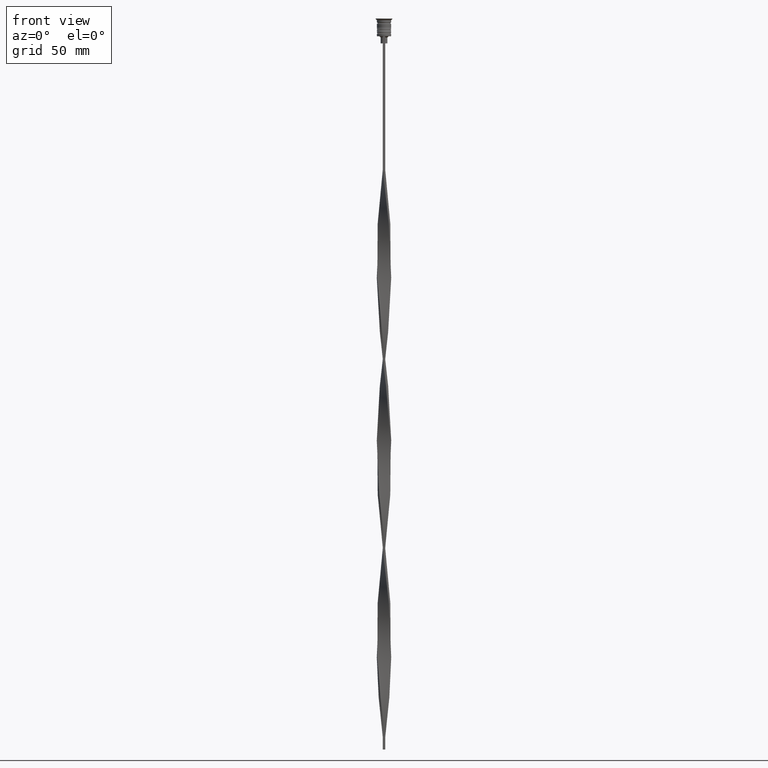
[diagram: clean part render]
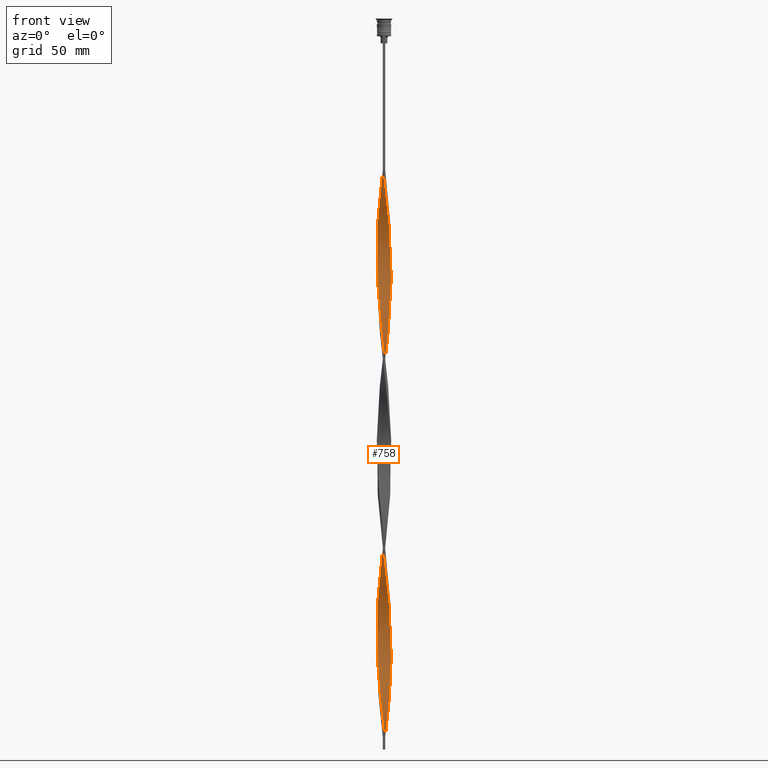
[diagram: same view with one face highlighted and labeled with its STEP entity id]
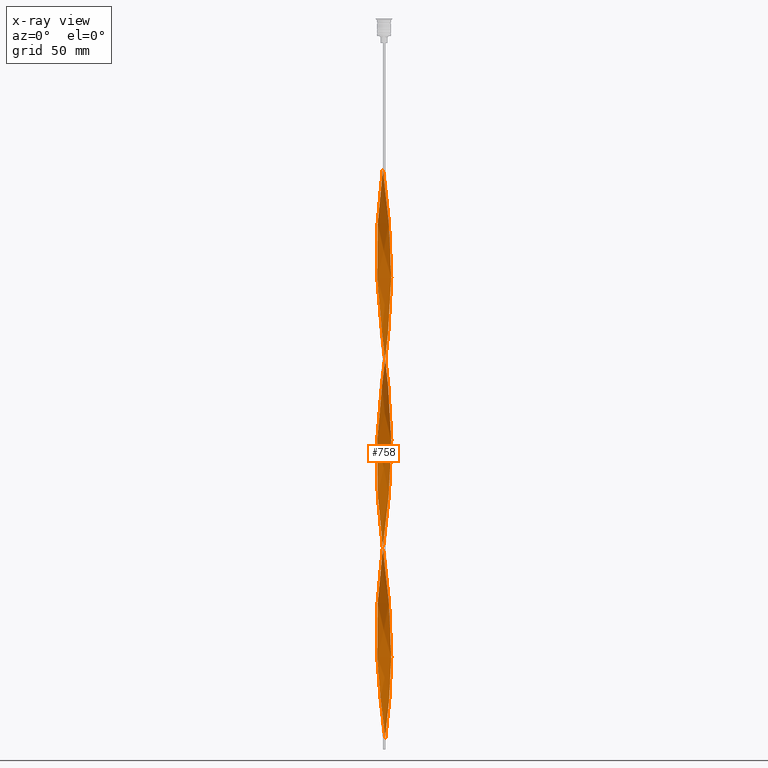
[diagram: x-ray of the same camera — body ghosted, the highlighted face saturated]
A machine part, front view. The second image highlights one B-rep face of the part: STEP entity #758.
The next image is the same camera in x-ray: the body ghosted, the highlighted face saturated — about 0% of this face is hidden behind the body in this view.
In plain terms, the highlighted face is a freeform B-spline surface patch.
Its self-contained STEP definition (entity closure, byte-faithful):
#3 = CARTESIAN_POINT ( 'NONE',  ( 2.446024322695329989, -1.807474761312824363, -250.7166666666666970 ) ) ;
#5 = CARTESIAN_POINT ( 'NONE',  ( 1.572990165913119354, 2.614000010619523806, -204.9083333333333599 ) ) ;
#6 = CARTESIAN_POINT ( 'NONE',  ( -0.7361051204738575660, -2.960649146587690073, -220.8416666666666970 ) ) ;
#18 = CARTESIAN_POINT ( 'NONE',  ( 0.9164682371244560199, -2.900014822434877182, -234.7833333333333314 ) ) ;
#21 = CARTESIAN_POINT ( 'NONE',  ( -1.358847259689946130, -2.720943609271079033, -286.5666666666667197 ) ) ;
#22 = CARTESIAN_POINT ( 'NONE',  ( -1.999981050443478070, -2.303772973937591839, -208.8916666666666799 ) ) ;
#41 = CARTESIAN_POINT ( 'NONE',  ( -0.2148133291723924865, -3.043213655198747869, -296.5250000000000341 ) ) ;
#42 = CARTESIAN_POINT ( 'NONE',  ( -3.043213655198748313, -0.2148133291723901273, -188.9750000000000512 ) ) ;
#56 = CARTESIAN_POINT ( 'NONE',  ( -2.827887207922633372, 1.144704353466774016, -248.7250000000000227 ) ) ;
#57 = CARTESIAN_POINT ( 'NONE',  ( 0.5000000000000004441, 3.000000000000000000, -143.1666666666666572 ) ) ;
#71 = CARTESIAN_POINT ( 'NONE',  ( 2.809046431942905375, 1.190190010362665918, -188.9750000000000512 ) ) ;
#75 = CARTESIAN_POINT ( 'NONE',  ( 0.9164682371244567971, 2.900014822434876738, -210.8833333333333258 ) ) ;
#76 = CARTESIAN_POINT ( 'NONE',  ( 2.960649146587690517, -0.7361051204738555676, -260.6750000000000682 ) ) ;
#86 = CARTESIAN_POINT ( 'NONE',  ( -2.303772973937591839, -1.999981050443478514, -276.6083333333332916 ) ) ;
#95 = CARTESIAN_POINT ( 'NONE',  ( -2.972142436947121436, 0.6882321207821388009, -93.37500000000001421 ) ) ;
#106 = CARTESIAN_POINT ( 'NONE',  ( -2.900014822434876738, 0.9164682371244563530, -250.7166666666666970 ) ) ;
#111 = CARTESIAN_POINT ( 'NONE',  ( 0.02454077517687595564, -3.041282254305528010, -139.1833333333333371 ) ) ;
#114 = CARTESIAN_POINT ( 'NONE',  ( -0.2148133291723924587, -3.043213655198747869, -296.5250000000000341 ) ) ;
#124 = CARTESIAN_POINT ( 'NONE',  ( 1.572990165913119576, 2.614000010619524250, -204.9083333333333599 ) ) ;
#133 = CARTESIAN_POINT ( 'NONE',  ( -1.614968472182171100, 2.588275671453069027, -73.45833333333335702 ) ) ;
#143 = CARTESIAN_POINT ( 'NONE',  ( 2.827887207922633372, -1.144704353466772906, -169.0583333333333655 ) ) ;
#151 = CARTESIAN_POINT ( 'NONE',  ( 0.7361051204738557896, 2.960649146587690517, -300.5083333333334394 ) ) ;
#157 = CARTESIAN_POINT ( 'NONE',  ( -0.4515227249772655882, -3.007678046072934208, -294.5333333333333030 ) ) ;
#174 = CARTESIAN_POINT ( 'NONE',  ( -1.190190010362667694, 2.809046431942904931, -69.47499999999999432 ) ) ;
#175 = CARTESIAN_POINT ( 'NONE',  ( -2.809046431942904931, 1.190190010362667028, -177.0250000000000057 ) ) ;
#198 = CARTESIAN_POINT ( 'NONE',  ( 0.7361051204738559006, 2.960649146587690961, -141.1749999999999829 ) ) ;
#201 = CARTESIAN_POINT ( 'NONE',  ( -0.9164682371244565751, -2.900014822434876738, -131.2166666666666686 ) ) ;
#202 = CARTESIAN_POINT ( 'NONE',  ( 1.358847259689945686, -2.720943609271079033, -79.43333333333332291 ) ) ;
#207 =( BOUNDED_SURFACE ( )  B_SPLINE_SURFACE ( 1, 2, ( 
 ( #564, #3858, #1732, #1774, #3642, #824, #3336, #3580, #202, #584, #1414, #2337, #2637, #3917, #3902, #1156, #1173, #3557, #3256, #2996, #2953, #224, #860, #1434, #2375, #841, #881, #2098, #3317, #2660, #2057, #1793, #3277, #540, #2976, #1458, #673, #3729, #1883, #692, #57, #2774, #3374, #1530, #1251, #1283, #638, #3407, #358, #3056, #2153, #323, #2206, #3678, #2756, #2739, #3425, #915, #937, #2507, #1848, #1546, #2473, #42, #989, #3659, #2133, #3698, #3356, #955, #1567, #303, #1267, #22, #3071, #2810, #339, #376, #1231, #6, #1831, #2170, #2455, #3391, #653, #1213, #621, #1861, #3033, #3087, #1513, #2791, #1584, #3109, #2435, #2489, #3712, #970, #2184, #76, #1661, #2826, #2907, #750, #1303, #1602, #2564, #3749, #430, #2846, #3785, #1044, #1362, #1682, #2226, #3811, #2264, #1065, #3205, #151, #3505 ),
 ( #3127, #2528, #3768, #174, #1980, #133, #3485, #394, #3461, #1387, #1343, #451, #768, #1006, #1960, #95, #469, #2589, #3527, #1623, #3443, #3186, #3833, #2885, #2610, #1022, #1087, #1641, #707, #2866, #2305, #1916, #728, #1323, #1901, #3144, #2285, #411, #111, #2545, #2240, #1939, #3166, #493, #790, #3229, #1705, #2004, #2929, #2579, #2820, #1952, #1035, #143, #1580, #1353, #422, #3137, #1613, #1634, #2805, #1652, #3454, #71, #370, #1316, #2501, #403, #1595, #2539, #3761, #124, #443, #983, #2556, #1016, #3778, #3177, #2858, #2254, #3804, #3477, #1334, #700, #1879, #1278, #2522, #2877, #741, #2840, #2235, #3104, #2219, #1057, #106, #3158, #2276, #3723, #719, #2200, #666, #3420, #685, #387, #1894, #1930, #3121, #86, #1295, #3742, #1000, #3436, #1910, #1664, #2010, #1093, #157, #114, #2243, #1709, #3445 ) ),
 .UNSPECIFIED., .F., .F., .F. ) 
 B_SPLINE_SURFACE_WITH_KNOTS ( ( 2, 2 ),
 ( 3, 2, 2, 2, 2, 2, 2, 2, 2, 2, 2, 2, 2, 2, 2, 2, 2, 2, 2, 2, 2, 2, 2, 2, 2, 2, 2, 2, 2, 2, 2, 2, 2, 2, 2, 2, 2, 2, 2, 2, 2, 2, 2, 2, 2, 2, 2, 2, 2, 2, 2, 2, 2, 2, 2, 2, 2, 2, 2, 2, 3 ),
 ( 0.000000000000000000, 1.000000000000000000 ),
 ( 0.000000000000000000, 0.01250000000000000069, 0.02500000000000000139, 0.03749999999999999861, 0.05000000000000000278, 0.06250000000000000000, 0.07499999999999999722, 0.08749999999999999445, 0.1000000000000000056, 0.1125000000000000028, 0.1250000000000000000, 0.1375000000000000111, 0.1499999999999999944, 0.1625000000000000056, 0.1749999999999999889, 0.1875000000000000000, 0.2000000000000000111, 0.2124999999999999944, 0.2250000000000000056, 0.2374999999999999889, 0.2500000000000000000, 0.2625000000000000111, 0.2750000000000000222, 0.2874999999999999778, 0.2999999999999999889, 0.3125000000000000000, 0.3250000000000000111, 0.3375000000000000222, 0.3499999999999999778, 0.3624999999999999889, 0.3750000000000000000, 0.3875000000000000111, 0.4000000000000000222, 0.4124999999999999778, 0.4249999999999999889, 0.4375000000000000000, 0.4500000000000000111, 0.4625000000000000222, 0.4749999999999999778, 0.4874999999999999889, 0.5000000000000000000, 0.5124999999999999556, 0.5250000000000000222, 0.5374999999999999778, 0.5500000000000000444, 0.5625000000000000000, 0.5749999999999999556, 0.5875000000000000222, 0.5999999999999999778, 0.6125000000000000444, 0.6250000000000000000, 0.6374999999999999556, 0.6500000000000000222, 0.6624999999999999778, 0.6750000000000000444, 0.6875000000000000000, 0.6999999999999999556, 0.7125000000000000222, 0.7249999999999999778, 0.7375000000000000444, 0.7500000000000000000 ),
 .UNSPECIFIED. ) 
 GEOMETRIC_REPRESENTATION_ITEM ( )  RATIONAL_B_SPLINE_SURFACE ( (
 ( 1.000000000000000000, 0.9969173337331279638, 1.000000000000000000, 0.9969173337331279638, 1.000000000000000000, 0.9969173337331279638, 1.000000000000000000, 0.9969173337331279638, 1.000000000000000000, 0.9969173337331279638, 1.000000000000000000, 0.9969173337331279638, 1.000000000000000000, 0.9969173337331279638, 1.000000000000000000, 0.9969173337331279638, 1.000000000000000000, 0.9969173337331279638, 1.000000000000000000, 0.9969173337331279638, 1.000000000000000000, 0.9969173337331279638, 1.000000000000000000, 0.9969173337331279638, 1.000000000000000000, 0.9969173337331279638, 1.000000000000000000, 0.9969173337331279638, 1.000000000000000000, 0.9969173337331279638, 1.000000000000000000, 0.9969173337331279638, 1.000000000000000000, 0.9969173337331279638, 1.000000000000000000, 0.9969173337331279638, 1.000000000000000000, 0.9969173337331279638, 1.000000000000000000, 0.9969173337331279638, 1.000000000000000000, 0.9969173337331279638, 1.000000000000000000, 0.9969173337331279638, 1.000000000000000000, 0.9969173337331279638, 1.000000000000000000, 0.9969173337331279638, 1.000000000000000000, 0.9969173337331279638, 1.000000000000000000, 0.9969173337331279638, 1.000000000000000000, 0.9969173337331279638, 1.000000000000000000, 0.9969173337331279638, 1.000000000000000000, 0.9969173337331279638, 1.000000000000000000, 0.9969173337331279638, 1.000000000000000000, 0.9969173337331279638, 1.000000000000000000, 0.9969173337331279638, 1.000000000000000000, 0.9969173337331279638, 1.000000000000000000, 0.9969173337331279638, 1.000000000000000000, 0.9969173337331279638, 1.000000000000000000, 0.9969173337331279638, 1.000000000000000000, 0.9969173337331279638, 1.000000000000000000, 0.9969173337331279638, 1.000000000000000000, 0.9969173337331279638, 1.000000000000000000, 0.9969173337331279638, 1.000000000000000000, 0.9969173337331279638, 1.000000000000000000, 0.9969173337331279638, 1.000000000000000000, 0.9969173337331279638, 1.000000000000000000, 0.9969173337331279638, 1.000000000000000000, 0.9969173337331279638, 1.000000000000000000, 0.9969173337331279638, 1.000000000000000000, 0.9969173337331279638, 1.000000000000000000, 0.9969173337331279638, 1.000000000000000000, 0.9969173337331279638, 1.000000000000000000, 0.9969173337331279638, 1.000000000000000000, 0.9969173337331279638, 1.000000000000000000, 0.9969173337331279638, 1.000000000000000000, 0.9969173337331279638, 1.000000000000000000, 0.9969173337331279638, 1.000000000000000000, 0.9969173337331279638, 1.000000000000000000, 0.9969173337331279638, 1.000000000000000000, 0.9969173337331279638, 1.000000000000000000, 0.9969173337331279638, 1.000000000000000000, 0.9969173337331279638, 1.000000000000000000, 0.9969173337331279638, 1.000000000000000000),
 ( 1.000000000000000000, 0.9969173337331279638, 1.000000000000000000, 0.9969173337331279638, 1.000000000000000000, 0.9969173337331279638, 1.000000000000000000, 0.9969173337331279638, 1.000000000000000000, 0.9969173337331279638, 1.000000000000000000, 0.9969173337331279638, 1.000000000000000000, 0.9969173337331279638, 1.000000000000000000, 0.9969173337331279638, 1.000000000000000000, 0.9969173337331279638, 1.000000000000000000, 0.9969173337331279638, 1.000000000000000000, 0.9969173337331279638, 1.000000000000000000, 0.9969173337331279638, 1.000000000000000000, 0.9969173337331279638, 1.000000000000000000, 0.9969173337331279638, 1.000000000000000000, 0.9969173337331279638, 1.000000000000000000, 0.9969173337331279638, 1.000000000000000000, 0.9969173337331279638, 1.000000000000000000, 0.9969173337331279638, 1.000000000000000000, 0.9969173337331279638, 1.000000000000000000, 0.9969173337331279638, 1.000000000000000000, 0.9969173337331279638, 1.000000000000000000, 0.9969173337331279638, 1.000000000000000000, 0.9969173337331279638, 1.000000000000000000, 0.9969173337331279638, 1.000000000000000000, 0.9969173337331279638, 1.000000000000000000, 0.9969173337331279638, 1.000000000000000000, 0.9969173337331279638, 1.000000000000000000, 0.9969173337331279638, 1.000000000000000000, 0.9969173337331279638, 1.000000000000000000, 0.9969173337331279638, 1.000000000000000000, 0.9969173337331279638, 1.000000000000000000, 0.9969173337331279638, 1.000000000000000000, 0.9969173337331279638, 1.000000000000000000, 0.9969173337331279638, 1.000000000000000000, 0.9969173337331279638, 1.000000000000000000, 0.9969173337331279638, 1.000000000000000000, 0.9969173337331279638, 1.000000000000000000, 0.9969173337331279638, 1.000000000000000000, 0.9969173337331279638, 1.000000000000000000, 0.9969173337331279638, 1.000000000000000000, 0.9969173337331279638, 1.000000000000000000, 0.9969173337331279638, 1.000000000000000000, 0.9969173337331279638, 1.000000000000000000, 0.9969173337331279638, 1.000000000000000000, 0.9969173337331279638, 1.000000000000000000, 0.9969173337331279638, 1.000000000000000000, 0.9969173337331279638, 1.000000000000000000, 0.9969173337331279638, 1.000000000000000000, 0.9969173337331279638, 1.000000000000000000, 0.9969173337331279638, 1.000000000000000000, 0.9969173337331279638, 1.000000000000000000, 0.9969173337331279638, 1.000000000000000000, 0.9969173337331279638, 1.000000000000000000, 0.9969173337331279638, 1.000000000000000000, 0.9969173337331279638, 1.000000000000000000, 0.9969173337331279638, 1.000000000000000000, 0.9969173337331279638, 1.000000000000000000, 0.9969173337331279638, 1.000000000000000000, 0.9969173337331279638, 1.000000000000000000, 0.9969173337331279638, 1.000000000000000000) ) ) 
 REPRESENTATION_ITEM ( '' )  SURFACE ( )  );
#218 = CARTESIAN_POINT ( 'NONE',  ( -2.900014822434877626, -0.9164682371244557979, -194.9500000000000171 ) ) ;
#223 = CARTESIAN_POINT ( 'NONE',  ( -2.972142436947121436, 0.6882321207821388009, -93.37500000000001421 ) ) ;
#224 = CARTESIAN_POINT ( 'NONE',  ( 3.039350853412309039, -0.2638948795261449320, -105.3249999999999886 ) ) ;
#245 = CARTESIAN_POINT ( 'NONE',  ( 2.960649146587690961, -0.7361051204738556786, -101.3416666666666828 ) ) ;
#247 = CARTESIAN_POINT ( 'NONE',  ( 0.9164682371244560199, -2.900014822434877182, -75.45000000000000284 ) ) ;
#248 = CARTESIAN_POINT ( 'NONE',  ( 3.000000000000000000, 0.4999999999999995559, -183.0000000000000000 ) ) ;
#264 = CARTESIAN_POINT ( 'NONE',  ( -1.572990165913117355, 2.614000010619525582, -161.0916666666666970 ) ) ;
#267 = CARTESIAN_POINT ( 'NONE',  ( 1.999981050443478070, -2.303772973937591395, -157.1083333333333769 ) ) ;
#280 = CARTESIAN_POINT ( 'NONE',  ( 2.167864254064893359, 2.133158356978605230, -286.5666666666667197 ) ) ;
#282 = CARTESIAN_POINT ( 'NONE',  ( -2.720943609271079033, 1.358847259689945686, -87.40000000000000568 ) ) ;
#299 = CARTESIAN_POINT ( 'NONE',  ( 1.999981050443478958, 2.303772973937590951, -288.5583333333333940 ) ) ;
#302 = CARTESIAN_POINT ( 'NONE',  ( -2.900014822434876738, 0.9164682371244563530, -250.7166666666666970 ) ) ;
#303 = CARTESIAN_POINT ( 'NONE',  ( -2.335747457686310202, -1.962543740019619509, -204.9083333333333599 ) ) ;
#316 = VERTEX_POINT ( 'NONE', #2604 ) ;
#319 = CARTESIAN_POINT ( 'NONE',  ( 2.720943609271079033, 1.358847259689945242, -278.6000000000000227 ) ) ;
#322 = CARTESIAN_POINT ( 'NONE',  ( -2.303772973937591395, -1.999981050443478514, -276.6083333333333485 ) ) ;
#323 = CARTESIAN_POINT ( 'NONE',  ( -1.962543740019619731, 2.335747457686310202, -165.0749999999999886 ) ) ;
#335 = CARTESIAN_POINT ( 'NONE',  ( 2.960649146587690961, -0.7361051204738556786, -260.6750000000000682 ) ) ;
#338 = CARTESIAN_POINT ( 'NONE',  ( -0.6882321207821390230, -2.972142436947121436, -292.5416666666666856 ) ) ;
#339 = CARTESIAN_POINT ( 'NONE',  ( -1.402579241272419841, -2.698661051697986757, -214.8666666666666742 ) ) ;
#357 = CARTESIAN_POINT ( 'NONE',  ( -2.698661051697987201, -1.402579241272419175, -270.6333333333333258 ) ) ;
#358 = CARTESIAN_POINT ( 'NONE',  ( -1.358847259689945242, 2.720943609271079033, -159.1000000000000227 ) ) ;
#370 = CARTESIAN_POINT ( 'NONE',  ( 2.698661051697987201, 1.402579241272418731, -190.9666666666666686 ) ) ;
#375 = CARTESIAN_POINT ( 'NONE',  ( -1.572990165913117799, -2.614000010619525138, -284.5750000000001023 ) ) ;
#376 = CARTESIAN_POINT ( 'NONE',  ( -1.190190010362667250, -2.809046431942904931, -216.8583333333333769 ) ) ;
#387 = CARTESIAN_POINT ( 'NONE',  ( -2.809046431942904931, -1.190190010362667694, -268.6416666666666515 ) ) ;
#394 = CARTESIAN_POINT ( 'NONE',  ( -1.999981050443478514, 2.303772973937591839, -77.44166666666669130 ) ) ;
#403 = CARTESIAN_POINT ( 'NONE',  ( 2.303772973937592727, 1.999981050443477626, -196.9416666666667197 ) ) ;
#411 = CARTESIAN_POINT ( 'NONE',  ( -0.2148133291723924587, -3.043213655198747869, -137.1916666666666913 ) ) ;
#422 = CARTESIAN_POINT ( 'NONE',  ( 3.007678046072934208, -0.4515227249772658102, -175.0333333333333599 ) ) ;
#430 = CARTESIAN_POINT ( 'NONE',  ( 2.720943609271079033, 1.358847259689945242, -278.6000000000000227 ) ) ;
#443 = CARTESIAN_POINT ( 'NONE',  ( 1.358847259689946352, 2.720943609271079033, -206.9000000000000057 ) ) ;
#451 = CARTESIAN_POINT ( 'NONE',  ( -2.614000010619525138, 1.572990165913118021, -85.40833333333333144 ) ) ;
#469 = CARTESIAN_POINT ( 'NONE',  ( -3.007678046072934208, 0.4515227249772654772, -95.36666666666667425 ) ) ;
#470 = CARTESIAN_POINT ( 'NONE',  ( -0.4515227249772649221, 3.007678046072934652, -151.1333333333333542 ) ) ;
#493 = CARTESIAN_POINT ( 'NONE',  ( 1.190190010362667472, -2.809046431942904931, -149.1416666666667084 ) ) ;
#494 = CARTESIAN_POINT ( 'NONE',  ( -3.039350853412309483, 0.2638948795261439328, -184.9916666666666742 ) ) ;
#515 = CARTESIAN_POINT ( 'NONE',  ( 3.041282254305528454, -0.02454077517687655238, -107.3166666666666771 ) ) ;
#519 = CARTESIAN_POINT ( 'NONE',  ( -0.4515227249772655882, -3.007678046072934208, -135.1999999999999886 ) ) ;
#535 = CARTESIAN_POINT ( 'NONE',  ( 3.039350853412309483, -0.2638948795261449320, -105.3250000000000028 ) ) ;
#539 = CARTESIAN_POINT ( 'NONE',  ( 3.041282254305528010, 0.02454077517687579257, -179.0166666666666515 ) ) ;
#540 = CARTESIAN_POINT ( 'NONE',  ( 1.999981050443478958, 2.303772973937591395, -129.2250000000000512 ) ) ;
#549 = ORIENTED_EDGE ( 'NONE', *, *, #961, .T. ) ;
#561 = CARTESIAN_POINT ( 'NONE',  ( 1.572990165913117799, -2.614000010619525138, -81.42500000000001137 ) ) ;
#563 = CARTESIAN_POINT ( 'NONE',  ( -1.144704353466774016, -2.827887207922633372, -129.2250000000000227 ) ) ;
#564 = CARTESIAN_POINT ( 'NONE',  ( -0.5000000000000001110, -3.000000000000000000, -63.50000000000000000 ) ) ;
#583 = CARTESIAN_POINT ( 'NONE',  ( 0.02454077517687595564, -3.041282254305528010, -139.1833333333333371 ) ) ;
#584 = CARTESIAN_POINT ( 'NONE',  ( 1.572990165913118021, -2.614000010619525138, -81.42500000000002558 ) ) ;
#596 = CARTESIAN_POINT ( 'NONE',  ( 1.614968472182171322, 2.588275671453069027, -292.5416666666666856 ) ) ;
#599 = CARTESIAN_POINT ( 'NONE',  ( -2.335747457686308870, 1.962543740019620397, -81.42500000000001137 ) ) ;
#620 = CARTESIAN_POINT ( 'NONE',  ( 0.2638948795261443769, -3.039350853412309483, -300.5083333333334394 ) ) ;
#621 = CARTESIAN_POINT ( 'NONE',  ( 0.9164682371244560199, -2.900014822434877182, -234.7833333333333314 ) ) ;
#634 = CARTESIAN_POINT ( 'NONE',  ( 1.358847259689945686, -2.720943609271079033, -238.7666666666666799 ) ) ;
#637 = CARTESIAN_POINT ( 'NONE',  ( 2.884847789265297724, 0.9631475654182610757, -186.9833333333333485 ) ) ;
#638 = CARTESIAN_POINT ( 'NONE',  ( -0.9164682371244557979, 2.900014822434877182, -155.1166666666666742 ) ) ;
#649 = CARTESIAN_POINT ( 'NONE',  ( 2.133158356978606118, -2.167864254064893359, -246.7333333333333201 ) ) ;
#652 = CARTESIAN_POINT ( 'NONE',  ( 0.4999999999999997780, -3.000000000000000000, -302.5000000000000000 ) ) ;
#653 = CARTESIAN_POINT ( 'NONE',  ( 0.4515227249772652551, -3.007678046072934208, -230.8000000000000114 ) ) ;
#666 = CARTESIAN_POINT ( 'NONE',  ( -3.000000000000000000, -0.4999999999999998890, -262.6666666666667425 ) ) ;
#672 = CARTESIAN_POINT ( 'NONE',  ( -0.7361051204738554565, 2.960649146587690961, -224.8250000000000171 ) ) ;
#673 = CARTESIAN_POINT ( 'NONE',  ( 1.402579241272419397, 2.698661051697986757, -135.1999999999999886 ) ) ;
#685 = CARTESIAN_POINT ( 'NONE',  ( -2.884847789265297724, -0.9631475654182615198, -266.6499999999999773 ) ) ;
#691 = CARTESIAN_POINT ( 'NONE',  ( 2.588275671453068583, 1.614968472182171766, -192.9583333333333428 ) ) ;
#692 = CARTESIAN_POINT ( 'NONE',  ( 0.7361051204738557896, 2.960649146587690517, -141.1749999999999829 ) ) ;
#700 = CARTESIAN_POINT ( 'NONE',  ( -1.190190010362667694, 2.809046431942904931, -228.8083333333333655 ) ) ;
#707 = CARTESIAN_POINT ( 'NONE',  ( -2.133158356978606118, -2.167864254064892915, -119.2666666666666799 ) ) ;
#719 = CARTESIAN_POINT ( 'NONE',  ( -3.041282254305528454, -0.02454077517687622625, -258.6833333333333940 ) ) ;
#728 = CARTESIAN_POINT ( 'NONE',  ( -1.358847259689946130, -2.720943609271079033, -127.2333333333333343 ) ) ;
#741 = CARTESIAN_POINT ( 'NONE',  ( -2.167864254064893359, 2.133158356978606118, -238.7666666666666799 ) ) ;
#750 = CARTESIAN_POINT ( 'NONE',  ( 3.043213655198747869, 0.2148133291723917371, -268.6416666666666515 ) ) ;
#758 = ADVANCED_FACE ( 'NONE', ( #2357 ), #207, .T. ) ;
#768 = CARTESIAN_POINT ( 'NONE',  ( -2.720943609271079033, 1.358847259689945686, -87.40000000000000568 ) ) ;
#769 = CARTESIAN_POINT ( 'NONE',  ( 1.614968472182171322, 2.588275671453069027, -133.2083333333333144 ) ) ;
#790 = CARTESIAN_POINT ( 'NONE',  ( 1.402579241272418953, -2.698661051697987201, -151.1333333333333542 ) ) ;
#791 = CARTESIAN_POINT ( 'NONE',  ( 1.767766952966369098, -2.474873734152916782, -83.41666666666667140 ) ) ;
#815 = CARTESIAN_POINT ( 'NONE',  ( 0.5000000000000000000, -1.000000000000000000, -302.5000000000000000 ) ) ;
#816 = CARTESIAN_POINT ( 'NONE',  ( -2.446024322695329989, 1.807474761312824807, -171.0500000000000114 ) ) ;
#823 = CARTESIAN_POINT ( 'NONE',  ( 1.807474761312824141, -2.446024322695330433, -155.1166666666666742 ) ) ;
#824 = CARTESIAN_POINT ( 'NONE',  ( 0.6882321207821388009, -2.972142436947121436, -73.45833333333335702 ) ) ;
#837 = CARTESIAN_POINT ( 'NONE',  ( 2.972142436947121436, 0.6882321207821385789, -113.2916666666666998 ) ) ;
#840 = CARTESIAN_POINT ( 'NONE',  ( 3.039350853412309483, 0.2638948795261428781, -181.0083333333333258 ) ) ;
#841 = CARTESIAN_POINT ( 'NONE',  ( 2.972142436947121436, 0.6882321207821385789, -113.2916666666666856 ) ) ;
#856 = CARTESIAN_POINT ( 'NONE',  ( 1.962543740019620397, -2.335747457686308870, -85.40833333333333144 ) ) ;
#859 = CARTESIAN_POINT ( 'NONE',  ( -2.960649146587690961, -0.7361051204738553455, -105.3250000000000028 ) ) ;
#860 = CARTESIAN_POINT ( 'NONE',  ( 3.041282254305528454, -0.02454077517687655238, -107.3166666666666771 ) ) ;
#862 = ORIENTED_EDGE ( 'NONE', *, *, #3730, .F. ) ;
#878 = CARTESIAN_POINT ( 'NONE',  ( 2.335747457686308870, 1.962543740019620397, -284.5750000000001023 ) ) ;
#880 = CARTESIAN_POINT ( 'NONE',  ( 2.474873734152916338, -1.767766952966369542, -163.0833333333333712 ) ) ;
#881 = CARTESIAN_POINT ( 'NONE',  ( 2.900014822434877182, 0.9164682371244560199, -115.2833333333333314 ) ) ;
#895 = CARTESIAN_POINT ( 'NONE',  ( 0.2148133291723920424, -3.043213655198747869, -228.8083333333333655 ) ) ;
#897 = CARTESIAN_POINT ( 'NONE',  ( -1.614968472182171100, 2.588275671453069027, -73.45833333333334281 ) ) ;
#912 = CARTESIAN_POINT ( 'NONE',  ( 3.039350853412309483, -0.2638948795261449320, -264.6583333333333030 ) ) ;
#914 = CARTESIAN_POINT ( 'NONE',  ( -2.335747457686308870, 1.962543740019620397, -240.7583333333333826 ) ) ;
#915 = CARTESIAN_POINT ( 'NONE',  ( -2.809046431942904931, 1.190190010362667028, -177.0250000000000341 ) ) ;
#933 = CARTESIAN_POINT ( 'NONE',  ( 3.007678046072934652, 0.4515227249772650886, -270.6333333333333258 ) ) ;
#936 = CARTESIAN_POINT ( 'NONE',  ( 0.4515227249772661433, 3.007678046072934208, -214.8666666666666742 ) ) ;
#937 = CARTESIAN_POINT ( 'NONE',  ( -2.884847789265297280, 0.9631475654182620749, -179.0166666666666515 ) ) ;
#950 = CARTESIAN_POINT ( 'NONE',  ( -0.9631475654182622970, -2.884847789265297280, -218.8500000000000227 ) ) ;
#954 = CARTESIAN_POINT ( 'NONE',  ( 2.133158356978606562, 2.167864254064892471, -198.9333333333333371 ) ) ;
#955 = CARTESIAN_POINT ( 'NONE',  ( -2.614000010619524250, -1.572990165913118465, -200.9250000000000682 ) ) ;
#961 = EDGE_CURVE ( 'NONE', #2760, #1798, #2207, .T. ) ;
#969 = CARTESIAN_POINT ( 'NONE',  ( -3.041282254305528454, -0.02454077517687622625, -258.6833333333333940 ) ) ;
#970 = CARTESIAN_POINT ( 'NONE',  ( 2.809046431942904931, -1.190190010362667916, -256.6916666666666629 ) ) ;
#983 = CARTESIAN_POINT ( 'NONE',  ( 1.144704353466773128, 2.827887207922633817, -208.8916666666666799 ) ) ;
#988 = CARTESIAN_POINT ( 'NONE',  ( 2.446024322695330877, 1.807474761312824141, -194.9500000000000171 ) ) ;
#989 = CARTESIAN_POINT ( 'NONE',  ( -3.007678046072934652, -0.4515227249772648110, -190.9666666666666686 ) ) ;
#997 = ORIENTED_EDGE ( 'NONE', *, *, #2202, .T. ) ;
#1000 = CARTESIAN_POINT ( 'NONE',  ( -1.767766952966369098, -2.474873734152916338, -282.5833333333333712 ) ) ;
#1006 = CARTESIAN_POINT ( 'NONE',  ( -2.827887207922633372, 1.144704353466773794, -89.39166666666667993 ) ) ;
#1016 = CARTESIAN_POINT ( 'NONE',  ( 0.6882321207821407993, 2.972142436947120547, -212.8749999999999716 ) ) ;
#1022 = CARTESIAN_POINT ( 'NONE',  ( -2.588275671453069027, -1.614968472182170878, -113.2916666666666856 ) ) ;
#1035 = CARTESIAN_POINT ( 'NONE',  ( 2.720943609271079033, -1.358847259689946130, -167.0666666666666629 ) ) ;
#1044 = CARTESIAN_POINT ( 'NONE',  ( 2.335747457686308870, 1.962543740019620175, -284.5750000000001023 ) ) ;
#1057 = CARTESIAN_POINT ( 'NONE',  ( -2.827887207922633372, 1.144704353466773794, -248.7250000000000227 ) ) ;
#1065 = CARTESIAN_POINT ( 'NONE',  ( 1.190190010362667916, 2.809046431942904931, -296.5250000000000341 ) ) ;
#1066 = CARTESIAN_POINT ( 'NONE',  ( 1.402579241272419397, 2.698661051697986757, -135.1999999999999886 ) ) ;
#1087 = CARTESIAN_POINT ( 'NONE',  ( -2.446024322695330433, -1.807474761312824363, -115.2833333333333314 ) ) ;
#1088 = CARTESIAN_POINT ( 'NONE',  ( 1.807474761312824807, 2.446024322695329989, -131.2166666666666686 ) ) ;
#1093 = CARTESIAN_POINT ( 'NONE',  ( -0.6882321207821390230, -2.972142436947121436, -292.5416666666666856 ) ) ;
#1110 = CARTESIAN_POINT ( 'NONE',  ( -3.041282254305528454, 0.02454077517687698606, -186.9833333333333485 ) ) ;
#1116 = CARTESIAN_POINT ( 'NONE',  ( -2.827887207922633372, 1.144704353466774016, -89.39166666666667993 ) ) ;
#1133 = CARTESIAN_POINT ( 'NONE',  ( -3.000000000000000000, 0.5000000000000006661, -183.0000000000000000 ) ) ;
#1136 = CARTESIAN_POINT ( 'NONE',  ( -0.2638948795261447655, -3.039350853412309483, -65.49166666666667425 ) ) ;
#1138 = CARTESIAN_POINT ( 'NONE',  ( 2.972142436947120547, -0.6882321207821405773, -173.0416666666666856 ) ) ;
#1140 = B_SPLINE_CURVE_WITH_KNOTS ( 'NONE', 3,
 ( #2414, #3551, #815, #1152 ),
 .UNSPECIFIED., .F., .F.,
 ( 4, 4 ),
 ( 0.000000000000000000, 1.000000000000000000 ),
 .UNSPECIFIED. ) ;
#1152 = CARTESIAN_POINT ( 'NONE',  ( 0.4999999999999997780, -3.000000000000000000, -302.5000000000000000 ) ) ;
#1153 = CARTESIAN_POINT ( 'NONE',  ( -1.358847259689945242, 2.720943609271079033, -159.1000000000000227 ) ) ;
#1156 = CARTESIAN_POINT ( 'NONE',  ( 2.588275671453069027, -1.614968472182171100, -93.37500000000001421 ) ) ;
#1170 = CARTESIAN_POINT ( 'NONE',  ( 1.190190010362667916, 2.809046431942904931, -296.5250000000000341 ) ) ;
#1172 = CARTESIAN_POINT ( 'NONE',  ( -0.2148133291723924865, -3.043213655198747869, -137.1916666666666913 ) ) ;
#1173 = CARTESIAN_POINT ( 'NONE',  ( 2.698661051697986757, -1.402579241272419397, -95.36666666666667425 ) ) ;
#1191 = CARTESIAN_POINT ( 'NONE',  ( 2.588275671453069027, -1.614968472182171100, -252.7083333333333144 ) ) ;
#1194 = CARTESIAN_POINT ( 'NONE',  ( -3.007678046072934208, 0.4515227249772654772, -95.36666666666667425 ) ) ;
#1212 = CARTESIAN_POINT ( 'NONE',  ( -1.402579241272419175, 2.698661051697986757, -230.8000000000000114 ) ) ;
#1213 = CARTESIAN_POINT ( 'NONE',  ( 0.6882321207821388009, -2.972142436947121436, -232.7916666666666572 ) ) ;
#1230 = CARTESIAN_POINT ( 'NONE',  ( -3.039350853412309483, -0.2638948795261445990, -260.6750000000000682 ) ) ;
#1231 = CARTESIAN_POINT ( 'NONE',  ( -0.9631475654182622970, -2.884847789265297280, -218.8500000000000227 ) ) ;
#1236 = VERTEX_POINT ( 'NONE', #2029 ) ;
#1250 = CARTESIAN_POINT ( 'NONE',  ( -0.2638948795261426561, 3.039350853412309483, -220.8416666666667254 ) ) ;
#1251 = CARTESIAN_POINT ( 'NONE',  ( -0.4515227249772649221, 3.007678046072934652, -151.1333333333333542 ) ) ;
#1266 = CARTESIAN_POINT ( 'NONE',  ( 1.962543740019620397, 2.335747457686309314, -200.9250000000000398 ) ) ;
#1267 = CARTESIAN_POINT ( 'NONE',  ( -2.167864254064893803, -2.133158356978605230, -206.9000000000000057 ) ) ;
#1278 = CARTESIAN_POINT ( 'NONE',  ( -1.614968472182171100, 2.588275671453069027, -232.7916666666666572 ) ) ;
#1282 = CARTESIAN_POINT ( 'NONE',  ( 0.6882321207821407993, 2.972142436947120547, -212.8750000000000000 ) ) ;
#1283 = CARTESIAN_POINT ( 'NONE',  ( -0.6882321207821383569, 2.972142436947121880, -153.1250000000000000 ) ) ;
#1295 = CARTESIAN_POINT ( 'NONE',  ( -2.133158356978606118, -2.167864254064892915, -278.6000000000000227 ) ) ;
#1303 = CARTESIAN_POINT ( 'NONE',  ( 3.007678046072934652, 0.4515227249772650886, -270.6333333333333258 ) ) ;
#1304 = EDGE_CURVE ( 'NONE', #316, #1798, #1140, .T. ) ;
#1316 = CARTESIAN_POINT ( 'NONE',  ( 2.588275671453068583, 1.614968472182171766, -192.9583333333333428 ) ) ;
#1323 = CARTESIAN_POINT ( 'NONE',  ( -1.144704353466773794, -2.827887207922633372, -129.2250000000000512 ) ) ;
#1334 = CARTESIAN_POINT ( 'NONE',  ( -0.9631475654182616308, 2.884847789265297724, -226.8166666666666629 ) ) ;
#1343 = CARTESIAN_POINT ( 'NONE',  ( -2.474873734152916782, 1.767766952966369098, -83.41666666666667140 ) ) ;
#1353 = CARTESIAN_POINT ( 'NONE',  ( 2.972142436947120547, -0.6882321207821405773, -173.0416666666666856 ) ) ;
#1362 = CARTESIAN_POINT ( 'NONE',  ( 2.167864254064893359, 2.133158356978605230, -286.5666666666667197 ) ) ;
#1387 = CARTESIAN_POINT ( 'NONE',  ( -2.335747457686308870, 1.962543740019620175, -81.42500000000002558 ) ) ;
#1388 = CARTESIAN_POINT ( 'NONE',  ( 2.588275671453069027, -1.614968472182171100, -93.37500000000001421 ) ) ;
#1410 = CARTESIAN_POINT ( 'NONE',  ( -2.960649146587690517, 0.7361051204738573439, -181.0083333333333258 ) ) ;
#1413 = CARTESIAN_POINT ( 'NONE',  ( 0.9631475654182611867, -2.884847789265297724, -147.1500000000000057 ) ) ;
#1414 = CARTESIAN_POINT ( 'NONE',  ( 1.767766952966369098, -2.474873734152916782, -83.41666666666667140 ) ) ;
#1428 = CARTESIAN_POINT ( 'NONE',  ( -2.720943609271079477, -1.358847259689944798, -198.9333333333333371 ) ) ;
#1433 = CARTESIAN_POINT ( 'NONE',  ( 2.827887207922633372, -1.144704353466773128, -169.0583333333333655 ) ) ;
#1434 = CARTESIAN_POINT ( 'NONE',  ( 3.043213655198747869, 0.2148133291723917371, -109.3083333333333371 ) ) ;
#1452 = CARTESIAN_POINT ( 'NONE',  ( 2.900014822434877182, 0.9164682371244560199, -115.2833333333333314 ) ) ;
#1455 = CARTESIAN_POINT ( 'NONE',  ( 1.144704353466773794, -2.827887207922633817, -77.44166666666669130 ) ) ;
#1457 = CARTESIAN_POINT ( 'NONE',  ( 2.960649146587690961, 0.7361051204738562337, -184.9916666666666742 ) ) ;
#1458 = CARTESIAN_POINT ( 'NONE',  ( 1.614968472182171322, 2.588275671453069027, -133.2083333333333144 ) ) ;
#1472 = CARTESIAN_POINT ( 'NONE',  ( 2.614000010619525138, 1.572990165913117577, -280.5916666666666970 ) ) ;
#1475 = CARTESIAN_POINT ( 'NONE',  ( 2.900014822434876738, -0.9164682371244567971, -171.0500000000000114 ) ) ;
#1487 = CARTESIAN_POINT ( 'NONE',  ( 2.972142436947121436, 0.6882321207821385789, -272.6250000000000568 ) ) ;
#1489 = CARTESIAN_POINT ( 'NONE',  ( 0.2638948795261443769, -3.039350853412309483, -141.1749999999999829 ) ) ;
#1510 = CARTESIAN_POINT ( 'NONE',  ( 2.900014822434877182, 0.9164682371244560199, -274.6166666666666742 ) ) ;
#1512 = CARTESIAN_POINT ( 'NONE',  ( -3.000000000000000000, -0.4999999999999998890, -262.6666666666667425 ) ) ;
#1513 = CARTESIAN_POINT ( 'NONE',  ( 1.767766952966369098, -2.474873734152916782, -242.7500000000000284 ) ) ;
#1529 = CARTESIAN_POINT ( 'NONE',  ( -0.02454077517687562951, 3.041282254305528010, -218.8500000000000227 ) ) ;
#1530 = CARTESIAN_POINT ( 'NONE',  ( -0.2148133291723916816, 3.043213655198747869, -149.1416666666667084 ) ) ;
#1545 = CARTESIAN_POINT ( 'NONE',  ( 1.358847259689946352, 2.720943609271079033, -206.9000000000000057 ) ) ;
#1546 = CARTESIAN_POINT ( 'NONE',  ( -3.039350853412309039, 0.2638948795261439328, -184.9916666666666742 ) ) ;
#1566 = CARTESIAN_POINT ( 'NONE',  ( -2.167864254064893359, 2.133158356978606118, -238.7666666666666799 ) ) ;
#1567 = CARTESIAN_POINT ( 'NONE',  ( -2.474873734152917226, -1.767766952966368210, -202.9166666666666572 ) ) ;
#1580 = CARTESIAN_POINT ( 'NONE',  ( 2.900014822434876738, -0.9164682371244567971, -171.0500000000000114 ) ) ;
#1584 = CARTESIAN_POINT ( 'NONE',  ( 2.133158356978606118, -2.167864254064893359, -246.7333333333333201 ) ) ;
#1595 = CARTESIAN_POINT ( 'NONE',  ( 2.133158356978606562, 2.167864254064892471, -198.9333333333333371 ) ) ;
#1602 = CARTESIAN_POINT ( 'NONE',  ( 2.972142436947121436, 0.6882321207821385789, -272.6250000000000568 ) ) ;
#1613 = CARTESIAN_POINT ( 'NONE',  ( 3.041282254305528010, 0.02454077517687579257, -179.0166666666666515 ) ) ;
#1623 = CARTESIAN_POINT ( 'NONE',  ( -3.039350853412309039, -0.2638948795261445990, -101.3416666666666686 ) ) ;
#1634 = CARTESIAN_POINT ( 'NONE',  ( 3.039350853412309483, 0.2638948795261428781, -181.0083333333333258 ) ) ;
#1641 = CARTESIAN_POINT ( 'NONE',  ( -2.303772973937591839, -1.999981050443478514, -117.2750000000000199 ) ) ;
#1652 = CARTESIAN_POINT ( 'NONE',  ( 2.960649146587690517, 0.7361051204738562337, -184.9916666666666742 ) ) ;
#1661 = CARTESIAN_POINT ( 'NONE',  ( 3.000000000000000000, -0.5000000000000003331, -262.6666666666667425 ) ) ;
#1664 = CARTESIAN_POINT ( 'NONE',  ( -1.144704353466773794, -2.827887207922633372, -288.5583333333333940 ) ) ;
#1682 = CARTESIAN_POINT ( 'NONE',  ( 1.999981050443478958, 2.303772973937591395, -288.5583333333333940 ) ) ;
#1683 = CARTESIAN_POINT ( 'NONE',  ( 0.02454077517687682300, 3.041282254305528454, -147.1500000000000057 ) ) ;
#1705 = CARTESIAN_POINT ( 'NONE',  ( 1.807474761312824141, -2.446024322695330433, -155.1166666666666742 ) ) ;
#1706 = CARTESIAN_POINT ( 'NONE',  ( -0.9164682371244557979, 2.900014822434877182, -155.1166666666666742 ) ) ;
#1709 = CARTESIAN_POINT ( 'NONE',  ( 0.2638948795261443769, -3.039350853412309039, -300.5083333333334394 ) ) ;
#1727 = CARTESIAN_POINT ( 'NONE',  ( 1.358847259689945686, -2.720943609271079033, -79.43333333333332291 ) ) ;
#1731 = CARTESIAN_POINT ( 'NONE',  ( 2.614000010619524250, -1.572990165913119132, -165.0749999999999886 ) ) ;
#1732 = CARTESIAN_POINT ( 'NONE',  ( -0.02454077517687638932, -3.041282254305528454, -67.48333333333333428 ) ) ;
#1747 = CARTESIAN_POINT ( 'NONE',  ( 3.043213655198747869, 0.2148133291723917371, -109.3083333333333371 ) ) ;
#1753 = CARTESIAN_POINT ( 'NONE',  ( -1.402579241272419175, 2.698661051697986757, -71.46666666666666856 ) ) ;
#1769 = CARTESIAN_POINT ( 'NONE',  ( 2.827887207922633817, 1.144704353466773794, -117.2750000000000199 ) ) ;
#1773 = CARTESIAN_POINT ( 'NONE',  ( -0.6882321207821390230, -2.972142436947121436, -133.2083333333333144 ) ) ;
#1774 = CARTESIAN_POINT ( 'NONE',  ( 0.2148133291723920146, -3.043213655198747869, -69.47499999999999432 ) ) ;
#1792 = CARTESIAN_POINT ( 'NONE',  ( -2.809046431942904931, -1.190190010362667472, -109.3083333333333371 ) ) ;
#1793 = CARTESIAN_POINT ( 'NONE',  ( 2.335747457686308870, 1.962543740019620175, -125.2416666666667027 ) ) ;
#1798 = VERTEX_POINT ( 'NONE', #2955 ) ;
#1808 = CARTESIAN_POINT ( 'NONE',  ( 0.9631475654182618529, 2.884847789265297280, -298.5166666666666515 ) ) ;
#1811 = CARTESIAN_POINT ( 'NONE',  ( -1.999981050443478514, 2.303772973937591395, -77.44166666666669130 ) ) ;
#1828 = CARTESIAN_POINT ( 'NONE',  ( 1.402579241272419397, 2.698661051697986757, -294.5333333333333030 ) ) ;
#1830 = CARTESIAN_POINT ( 'NONE',  ( -0.9164682371244565751, -2.900014822434876738, -290.5499999999999545 ) ) ;
#1831 = CARTESIAN_POINT ( 'NONE',  ( -0.5000000000000001110, -3.000000000000000000, -222.8333333333333144 ) ) ;
#1843 = CARTESIAN_POINT ( 'NONE',  ( -0.5000000000000001110, -3.000000000000000000, -222.8333333333333144 ) ) ;
#1847 = CARTESIAN_POINT ( 'NONE',  ( -1.767766952966369098, -2.474873734152916338, -282.5833333333333712 ) ) ;
#1848 = CARTESIAN_POINT ( 'NONE',  ( -3.000000000000000000, 0.5000000000000006661, -183.0000000000000000 ) ) ;
#1858 = CARTESIAN_POINT ( 'NONE',  ( 0.7361051204738559006, 2.960649146587690961, -300.5083333333334394 ) ) ;
#1861 = CARTESIAN_POINT ( 'NONE',  ( 1.144704353466773572, -2.827887207922633817, -236.7750000000000341 ) ) ;
#1879 = CARTESIAN_POINT ( 'NONE',  ( -1.402579241272419175, 2.698661051697986757, -230.8000000000000114 ) ) ;
#1883 = CARTESIAN_POINT ( 'NONE',  ( 0.9631475654182618529, 2.884847789265297280, -139.1833333333333371 ) ) ;
#1894 = CARTESIAN_POINT ( 'NONE',  ( -2.698661051697987201, -1.402579241272419175, -270.6333333333333258 ) ) ;
#1901 = CARTESIAN_POINT ( 'NONE',  ( -0.9164682371244565751, -2.900014822434876738, -131.2166666666666686 ) ) ;
#1910 = CARTESIAN_POINT ( 'NONE',  ( -1.358847259689946130, -2.720943609271079033, -286.5666666666667197 ) ) ;
#1916 = CARTESIAN_POINT ( 'NONE',  ( -1.572990165913118021, -2.614000010619525138, -125.2416666666667027 ) ) ;
#1930 = CARTESIAN_POINT ( 'NONE',  ( -2.588275671453069027, -1.614968472182170878, -272.6250000000000568 ) ) ;
#1939 = CARTESIAN_POINT ( 'NONE',  ( 0.7361051204738550124, -2.960649146587690517, -145.1583333333333314 ) ) ;
#1952 = CARTESIAN_POINT ( 'NONE',  ( 2.614000010619524250, -1.572990165913119354, -165.0749999999999886 ) ) ;
#1960 = CARTESIAN_POINT ( 'NONE',  ( -2.900014822434876738, 0.9164682371244563530, -91.38333333333333997 ) ) ;
#1980 = CARTESIAN_POINT ( 'NONE',  ( -1.402579241272419175, 2.698661051697986757, -71.46666666666666856 ) ) ;
#1981 = CARTESIAN_POINT ( 'NONE',  ( 2.167864254064893359, 2.133158356978605230, -127.2333333333333343 ) ) ;
#2004 = CARTESIAN_POINT ( 'NONE',  ( 1.999981050443478070, -2.303772973937591839, -157.1083333333334053 ) ) ;
#2005 = CARTESIAN_POINT ( 'NONE',  ( 2.446024322695329989, -1.807474761312824363, -91.38333333333333997 ) ) ;
#2010 = CARTESIAN_POINT ( 'NONE',  ( -0.9164682371244565751, -2.900014822434876738, -290.5499999999999545 ) ) ;
#2029 = CARTESIAN_POINT ( 'NONE',  ( -0.5000000000000001110, -3.000000000000000000, -63.50000000000000000 ) ) ;
#2030 = CARTESIAN_POINT ( 'NONE',  ( -3.007678046072934652, -0.4515227249772648110, -190.9666666666666686 ) ) ;
#2035 = CARTESIAN_POINT ( 'NONE',  ( -0.9631475654182616308, 2.884847789265297724, -67.48333333333333428 ) ) ;
#2043 = CARTESIAN_POINT ( 'NONE',  ( -0.5000000000000001110, 3.000000000000000000, -63.50000000000000000 ) ) ;
#2052 = CARTESIAN_POINT ( 'NONE',  ( 2.614000010619525138, 1.572990165913117577, -121.2583333333333400 ) ) ;
#2055 = CARTESIAN_POINT ( 'NONE',  ( 0.4515227249772652551, -3.007678046072934208, -71.46666666666666856 ) ) ;
#2056 = CARTESIAN_POINT ( 'NONE',  ( -3.041282254305528454, -0.02454077517687622625, -99.34999999999999432 ) ) ;
#2057 = CARTESIAN_POINT ( 'NONE',  ( 2.474873734152916782, 1.767766952966368654, -123.2500000000000000 ) ) ;
#2073 = CARTESIAN_POINT ( 'NONE',  ( 0.5000000000000004441, 3.000000000000000000, -143.1666666666666572 ) ) ;
#2077 = CARTESIAN_POINT ( 'NONE',  ( -2.474873734152916782, 1.767766952966369098, -83.41666666666667140 ) ) ;
#2089 = ORIENTED_EDGE ( 'NONE', *, *, #1304, .F. ) ;
#2094 = CARTESIAN_POINT ( 'NONE',  ( 0.5000000000000004441, 3.000000000000000000, -302.5000000000000000 ) ) ;
#2097 = CARTESIAN_POINT ( 'NONE',  ( 3.007678046072934208, -0.4515227249772658102, -175.0333333333333599 ) ) ;
#2098 = CARTESIAN_POINT ( 'NONE',  ( 2.827887207922633817, 1.144704353466773572, -117.2750000000000199 ) ) ;
#2113 = CARTESIAN_POINT ( 'NONE',  ( 1.572990165913117799, -2.614000010619525138, -240.7583333333333826 ) ) ;
#2115 = CARTESIAN_POINT ( 'NONE',  ( -2.167864254064893359, 2.133158356978606118, -79.43333333333332291 ) ) ;
#2132 = CARTESIAN_POINT ( 'NONE',  ( -2.884847789265297724, -0.9631475654182615198, -266.6499999999999773 ) ) ;
#2133 = CARTESIAN_POINT ( 'NONE',  ( -2.900014822434877626, -0.9164682371244557979, -194.9500000000000171 ) ) ;
#2149 = CARTESIAN_POINT ( 'NONE',  ( 2.303772973937590951, -1.999981050443478958, -248.7250000000000227 ) ) ;
#2152 = CARTESIAN_POINT ( 'NONE',  ( -0.9631475654182616308, 2.884847789265297724, -226.8166666666666629 ) ) ;
#2153 = CARTESIAN_POINT ( 'NONE',  ( -1.767766952966368654, 2.474873734152917226, -163.0833333333333712 ) ) ;
#2166 = CARTESIAN_POINT ( 'NONE',  ( 1.767766952966369098, -2.474873734152916782, -242.7500000000000284 ) ) ;
#2169 = CARTESIAN_POINT ( 'NONE',  ( 0.2148133291723913485, 3.043213655198747869, -216.8583333333333769 ) ) ;
#2170 = CARTESIAN_POINT ( 'NONE',  ( -0.2638948795261447655, -3.039350853412309039, -224.8250000000000171 ) ) ;
#2182 = CARTESIAN_POINT ( 'NONE',  ( -0.5000000000000001110, -3.000000000000000000, -63.50000000000000000 ) ) ;
#2183 = CARTESIAN_POINT ( 'NONE',  ( -2.474873734152916782, 1.767766952966369098, -242.7500000000000284 ) ) ;
#2184 = CARTESIAN_POINT ( 'NONE',  ( 2.884847789265297724, -0.9631475654182618529, -258.6833333333333940 ) ) ;
#2200 = CARTESIAN_POINT ( 'NONE',  ( -3.039350853412309039, -0.2638948795261445990, -260.6750000000000682 ) ) ;
#2202 = EDGE_CURVE ( 'NONE', #1236, #2760, #3403, .T. ) ;
#2205 = CARTESIAN_POINT ( 'NONE',  ( -1.190190010362667472, 2.809046431942904931, -228.8083333333333655 ) ) ;
#2206 = CARTESIAN_POINT ( 'NONE',  ( -2.133158356978605230, 2.167864254064893359, -167.0666666666666629 ) ) ;
#2207 =( BOUNDED_CURVE ( )  B_SPLINE_CURVE ( 2, ( #2717, #3901, #2035, #2374, #1753, #897, #3939, #1811, #2115, #599, #2077, #2398, #282, #1116, #3599, #223, #1194, #2418, #2056, #3298, #2659, #859, #3641, #1792, #3276, #3335, #2336, #3579, #3621, #3556, #2698, #3255, #3316, #563, #201, #1773, #519, #1172, #583, #1489, #2952, #2975, #1413, #2995, #3916, #3013, #823, #267, #2636, #3857, #880, #1731, #3879, #1433, #1475, #1138, #2097, #2356, #539, #840, #248, #1457, #637, #3728, #2809, #691, #988, #3424, #954, #1266, #3108, #5, #1545, #3055, #75, #1282, #936, #2169, #1529, #1250, #2506, #672, #2152, #2205, #1212, #2454, #2488, #2434, #1566, #914, #2183, #3677, #3032, #56, #302, #3711, #2773, #2755, #969, #1230, #1512, #2472, #2132, #3697, #357, #2738, #3406, #322, #3070, #3658, #1847, #375, #21, #3355, #1830, #338, #3373, #41, #3390, #620, #652 ),
 .UNSPECIFIED., .F., .T. ) 
 B_SPLINE_CURVE_WITH_KNOTS ( ( 3, 2, 2, 2, 2, 2, 2, 2, 2, 2, 2, 2, 2, 2, 2, 2, 2, 2, 2, 2, 2, 2, 2, 2, 2, 2, 2, 2, 2, 2, 2, 2, 2, 2, 2, 2, 2, 2, 2, 2, 2, 2, 2, 2, 2, 2, 2, 2, 2, 2, 2, 2, 2, 2, 2, 2, 2, 2, 2, 2, 3 ),
 ( 0.000000000000000000, 0.01250000000000000243, 0.02500000000000000486, 0.03749999999999999861, 0.05000000000000000971, 0.06250000000000000000, 0.07499999999999999722, 0.08749999999999998057, 0.1000000000000000194, 0.1125000000000000028, 0.1250000000000000000, 0.1375000000000000111, 0.1499999999999999944, 0.1625000000000000056, 0.1749999999999999611, 0.1875000000000000000, 0.2000000000000000389, 0.2124999999999999944, 0.2250000000000000056, 0.2374999999999999611, 0.2500000000000000000, 0.2625000000000000111, 0.2750000000000000222, 0.2874999999999999778, 0.2999999999999999889, 0.3125000000000000000, 0.3250000000000000111, 0.3375000000000000777, 0.3499999999999999223, 0.3624999999999999889, 0.3750000000000000000, 0.3875000000000000111, 0.4000000000000000777, 0.4124999999999999223, 0.4249999999999999889, 0.4375000000000000000, 0.4500000000000000111, 0.4625000000000000777, 0.4749999999999999223, 0.4874999999999999889, 0.5000000000000000000, 0.5124999999999999556, 0.5250000000000000222, 0.5374999999999999778, 0.5500000000000000444, 0.5625000000000000000, 0.5749999999999999556, 0.5875000000000000222, 0.5999999999999999778, 0.6125000000000000444, 0.6250000000000000000, 0.6374999999999999556, 0.6500000000000000222, 0.6624999999999999778, 0.6750000000000001554, 0.6875000000000000000, 0.6999999999999998446, 0.7125000000000000222, 0.7249999999999999778, 0.7375000000000001554, 0.7500000000000000000 ),
 .UNSPECIFIED. ) 
 CURVE ( )  GEOMETRIC_REPRESENTATION_ITEM ( )  RATIONAL_B_SPLINE_CURVE ( ( 1.000000000000000000, 0.9969173337331279638, 1.000000000000000000, 0.9969173337331279638, 1.000000000000000000, 0.9969173337331279638, 1.000000000000000000, 0.9969173337331279638, 1.000000000000000000, 0.9969173337331279638, 1.000000000000000000, 0.9969173337331279638, 1.000000000000000000, 0.9969173337331279638, 1.000000000000000000, 0.9969173337331279638, 1.000000000000000000, 0.9969173337331279638, 1.000000000000000000, 0.9969173337331279638, 1.000000000000000000, 0.9969173337331279638, 1.000000000000000000, 0.9969173337331279638, 1.000000000000000000, 0.9969173337331279638, 1.000000000000000000, 0.9969173337331279638, 1.000000000000000000, 0.9969173337331279638, 1.000000000000000000, 0.9969173337331279638, 1.000000000000000000, 0.9969173337331279638, 1.000000000000000000, 0.9969173337331279638, 1.000000000000000000, 0.9969173337331279638, 1.000000000000000000, 0.9969173337331279638, 1.000000000000000000, 0.9969173337331279638, 1.000000000000000000, 0.9969173337331279638, 1.000000000000000000, 0.9969173337331279638, 1.000000000000000000, 0.9969173337331279638, 1.000000000000000000, 0.9969173337331279638, 1.000000000000000000, 0.9969173337331279638, 1.000000000000000000, 0.9969173337331279638, 1.000000000000000000, 0.9969173337331279638, 1.000000000000000000, 0.9969173337331279638, 1.000000000000000000, 0.9969173337331279638, 1.000000000000000000, 0.9969173337331279638, 1.000000000000000000, 0.9969173337331279638, 1.000000000000000000, 0.9969173337331279638, 1.000000000000000000, 0.9969173337331279638, 1.000000000000000000, 0.9969173337331279638, 1.000000000000000000, 0.9969173337331279638, 1.000000000000000000, 0.9969173337331279638, 1.000000000000000000, 0.9969173337331279638, 1.000000000000000000, 0.9969173337331279638, 1.000000000000000000, 0.9969173337331279638, 1.000000000000000000, 0.9969173337331279638, 1.000000000000000000, 0.9969173337331279638, 1.000000000000000000, 0.9969173337331279638, 1.000000000000000000, 0.9969173337331279638, 1.000000000000000000, 0.9969173337331279638, 1.000000000000000000, 0.9969173337331279638, 1.000000000000000000, 0.9969173337331279638, 1.000000000000000000, 0.9969173337331279638, 1.000000000000000000, 0.9969173337331279638, 1.000000000000000000, 0.9969173337331279638, 1.000000000000000000, 0.9969173337331279638, 1.000000000000000000, 0.9969173337331279638, 1.000000000000000000, 0.9969173337331279638, 1.000000000000000000, 0.9969173337331279638, 1.000000000000000000, 0.9969173337331279638, 1.000000000000000000, 0.9969173337331279638, 1.000000000000000000, 0.9969173337331279638, 1.000000000000000000, 0.9969173337331279638, 1.000000000000000000, 0.9969173337331279638, 1.000000000000000000, 0.9969173337331279638, 1.000000000000000000 ) ) 
 REPRESENTATION_ITEM ( '' )  );
#2219 = CARTESIAN_POINT ( 'NONE',  ( -2.720943609271079033, 1.358847259689945686, -246.7333333333333201 ) ) ;
#2226 = CARTESIAN_POINT ( 'NONE',  ( 1.807474761312824807, 2.446024322695329989, -290.5499999999999545 ) ) ;
#2235 = CARTESIAN_POINT ( 'NONE',  ( -2.474873734152916782, 1.767766952966369098, -242.7500000000000284 ) ) ;
#2240 = CARTESIAN_POINT ( 'NONE',  ( 0.4999999999999997780, -3.000000000000000000, -143.1666666666666572 ) ) ;
#2243 = CARTESIAN_POINT ( 'NONE',  ( 0.02454077517687595564, -3.041282254305528010, -298.5166666666666515 ) ) ;
#2254 = CARTESIAN_POINT ( 'NONE',  ( -0.2638948795261427116, 3.039350853412309483, -220.8416666666666970 ) ) ;
#2264 = CARTESIAN_POINT ( 'NONE',  ( 1.402579241272419397, 2.698661051697986757, -294.5333333333333030 ) ) ;
#2276 = CARTESIAN_POINT ( 'NONE',  ( -3.007678046072934208, 0.4515227249772654772, -254.7000000000000455 ) ) ;
#2285 = CARTESIAN_POINT ( 'NONE',  ( -0.4515227249772655882, -3.007678046072934208, -135.1999999999999886 ) ) ;
#2286 = CARTESIAN_POINT ( 'NONE',  ( 2.303772973937590951, -1.999981050443478958, -89.39166666666667993 ) ) ;
#2305 = CARTESIAN_POINT ( 'NONE',  ( -1.767766952966369098, -2.474873734152916338, -123.2500000000000000 ) ) ;
#2306 = CARTESIAN_POINT ( 'NONE',  ( -2.588275671453068139, 1.614968472182172210, -173.0416666666666856 ) ) ;
#2325 = EDGE_LOOP ( 'NONE', ( #997, #549, #2089, #862 ) ) ;
#2331 = CARTESIAN_POINT ( 'NONE',  ( -3.043213655198748313, -0.2148133291723901273, -188.9750000000000227 ) ) ;
#2336 = CARTESIAN_POINT ( 'NONE',  ( -2.446024322695330433, -1.807474761312824363, -115.2833333333333314 ) ) ;
#2337 = CARTESIAN_POINT ( 'NONE',  ( 1.962543740019620175, -2.335747457686308870, -85.40833333333333144 ) ) ;
#2352 = CARTESIAN_POINT ( 'NONE',  ( -2.474873734152917226, -1.767766952966368210, -202.9166666666666572 ) ) ;
#2355 = CARTESIAN_POINT ( 'NONE',  ( -0.02454077517687638932, -3.041282254305528454, -67.48333333333333428 ) ) ;
#2356 = CARTESIAN_POINT ( 'NONE',  ( 3.043213655198747869, -0.2148133291723912652, -177.0250000000000057 ) ) ;
#2357 = FACE_OUTER_BOUND ( 'NONE', #2325, .T. ) ;
#2371 = CARTESIAN_POINT ( 'NONE',  ( -1.962543740019619509, 2.335747457686310202, -165.0749999999999886 ) ) ;
#2374 = CARTESIAN_POINT ( 'NONE',  ( -1.190190010362667472, 2.809046431942904931, -69.47499999999999432 ) ) ;
#2375 = CARTESIAN_POINT ( 'NONE',  ( 3.007678046072934652, 0.4515227249772650886, -111.3000000000000114 ) ) ;
#2394 = CARTESIAN_POINT ( 'NONE',  ( 0.6882321207821388009, -2.972142436947121436, -232.7916666666666856 ) ) ;
#2398 = CARTESIAN_POINT ( 'NONE',  ( -2.614000010619525138, 1.572990165913117799, -85.40833333333333144 ) ) ;
#2414 = CARTESIAN_POINT ( 'NONE',  ( 0.5000000000000004441, 3.000000000000000000, -302.5000000000000000 ) ) ;
#2415 = CARTESIAN_POINT ( 'NONE',  ( 3.000000000000000000, -0.5000000000000003331, -262.6666666666667425 ) ) ;
#2418 = CARTESIAN_POINT ( 'NONE',  ( -3.043213655198747869, 0.2148133291723922644, -97.35833333333334849 ) ) ;
#2434 = CARTESIAN_POINT ( 'NONE',  ( -1.999981050443478514, 2.303772973937591395, -236.7750000000000341 ) ) ;
#2435 = CARTESIAN_POINT ( 'NONE',  ( 2.446024322695329989, -1.807474761312824363, -250.7166666666666970 ) ) ;
#2449 = CARTESIAN_POINT ( 'NONE',  ( 1.962543740019620397, -2.335747457686308870, -244.7416666666667027 ) ) ;
#2454 = CARTESIAN_POINT ( 'NONE',  ( -1.614968472182171100, 2.588275671453069027, -232.7916666666666856 ) ) ;
#2455 = CARTESIAN_POINT ( 'NONE',  ( -0.02454077517687638932, -3.041282254305528454, -226.8166666666666629 ) ) ;
#2470 = CARTESIAN_POINT ( 'NONE',  ( -2.167864254064893803, -2.133158356978605230, -206.9000000000000057 ) ) ;
#2472 = CARTESIAN_POINT ( 'NONE',  ( -2.960649146587690961, -0.7361051204738553455, -264.6583333333333030 ) ) ;
#2473 = CARTESIAN_POINT ( 'NONE',  ( -3.041282254305528454, 0.02454077517687698606, -186.9833333333333485 ) ) ;
#2486 = DIRECTION ( 'NONE',  ( 0.000000000000000000, 1.000000000000000000, 0.000000000000000000 ) ) ;
#2488 = CARTESIAN_POINT ( 'NONE',  ( -1.807474761312824363, 2.446024322695330433, -234.7833333333333314 ) ) ;
#2489 = CARTESIAN_POINT ( 'NONE',  ( 2.588275671453069027, -1.614968472182171100, -252.7083333333332860 ) ) ;
#2501 = CARTESIAN_POINT ( 'NONE',  ( 2.446024322695330877, 1.807474761312824141, -194.9500000000000171 ) ) ;
#2506 = CARTESIAN_POINT ( 'NONE',  ( -0.5000000000000001110, 3.000000000000000000, -222.8333333333333144 ) ) ;
#2507 = CARTESIAN_POINT ( 'NONE',  ( -2.960649146587690073, 0.7361051204738573439, -181.0083333333333258 ) ) ;
#2522 = CARTESIAN_POINT ( 'NONE',  ( -1.807474761312824363, 2.446024322695330433, -234.7833333333333314 ) ) ;
#2528 = CARTESIAN_POINT ( 'NONE',  ( -0.7361051204738553455, 2.960649146587690517, -65.49166666666666003 ) ) ;
#2539 = CARTESIAN_POINT ( 'NONE',  ( 1.962543740019620175, 2.335747457686309314, -200.9250000000000682 ) ) ;
#2545 = CARTESIAN_POINT ( 'NONE',  ( 0.2638948795261443769, -3.039350853412309039, -141.1749999999999829 ) ) ;
#2556 = CARTESIAN_POINT ( 'NONE',  ( 0.9164682371244567971, 2.900014822434876738, -210.8833333333333258 ) ) ;
#2564 = CARTESIAN_POINT ( 'NONE',  ( 2.900014822434877182, 0.9164682371244560199, -274.6166666666666742 ) ) ;
#2579 = CARTESIAN_POINT ( 'NONE',  ( 2.335747457686308426, -1.962543740019620619, -161.0916666666666970 ) ) ;
#2589 = CARTESIAN_POINT ( 'NONE',  ( -3.043213655198747869, 0.2148133291723922367, -97.35833333333336270 ) ) ;
#2590 = CARTESIAN_POINT ( 'NONE',  ( -2.698661051697986757, 1.402579241272419619, -175.0333333333333599 ) ) ;
#2604 = CARTESIAN_POINT ( 'NONE',  ( 0.5000000000000004441, 3.000000000000000000, -302.5000000000000000 ) ) ;
#2610 = CARTESIAN_POINT ( 'NONE',  ( -2.698661051697987201, -1.402579241272419175, -111.3000000000000114 ) ) ;
#2611 = CARTESIAN_POINT ( 'NONE',  ( -2.884847789265297280, 0.9631475654182620749, -179.0166666666666515 ) ) ;
#2631 = CARTESIAN_POINT ( 'NONE',  ( 2.133158356978606118, -2.167864254064893359, -87.40000000000000568 ) ) ;
#2636 = CARTESIAN_POINT ( 'NONE',  ( 2.167864254064892915, -2.133158356978606118, -159.1000000000000227 ) ) ;
#2637 = CARTESIAN_POINT ( 'NONE',  ( 2.133158356978606118, -2.167864254064893359, -87.40000000000000568 ) ) ;
#2655 = CARTESIAN_POINT ( 'NONE',  ( 1.999981050443478958, 2.303772973937590951, -129.2250000000000227 ) ) ;
#2659 = CARTESIAN_POINT ( 'NONE',  ( -3.000000000000000000, -0.4999999999999998890, -103.3333333333333286 ) ) ;
#2660 = CARTESIAN_POINT ( 'NONE',  ( 2.614000010619525138, 1.572990165913117577, -121.2583333333333400 ) ) ;
#2679 = CARTESIAN_POINT ( 'NONE',  ( 2.720943609271079033, 1.358847259689945242, -119.2666666666666799 ) ) ;
#2681 = CARTESIAN_POINT ( 'NONE',  ( -0.5000000000000001110, -3.000000000000000000, -63.50000000000000000 ) ) ;
#2696 = CARTESIAN_POINT ( 'NONE',  ( 3.043213655198747869, 0.2148133291723917371, -268.6416666666666515 ) ) ;
#2698 = CARTESIAN_POINT ( 'NONE',  ( -1.767766952966369098, -2.474873734152916338, -123.2500000000000000 ) ) ;
#2713 = CARTESIAN_POINT ( 'NONE',  ( 1.807474761312824807, 2.446024322695329989, -290.5499999999999545 ) ) ;
#2717 = CARTESIAN_POINT ( 'NONE',  ( -0.5000000000000001110, 3.000000000000000000, -63.50000000000000000 ) ) ;
#2738 = CARTESIAN_POINT ( 'NONE',  ( -2.588275671453069027, -1.614968472182170878, -272.6250000000000568 ) ) ;
#2739 = CARTESIAN_POINT ( 'NONE',  ( -2.588275671453068139, 1.614968472182172432, -173.0416666666666856 ) ) ;
#2752 = CARTESIAN_POINT ( 'NONE',  ( 3.041282254305528454, -0.02454077517687655238, -266.6499999999999773 ) ) ;
#2755 = CARTESIAN_POINT ( 'NONE',  ( -3.043213655198747869, 0.2148133291723922644, -256.6916666666666629 ) ) ;
#2756 = CARTESIAN_POINT ( 'NONE',  ( -2.446024322695329989, 1.807474761312824807, -171.0500000000000114 ) ) ;
#2760 = VERTEX_POINT ( 'NONE', #2043 ) ;
#2773 = CARTESIAN_POINT ( 'NONE',  ( -3.007678046072934208, 0.4515227249772654772, -254.7000000000000455 ) ) ;
#2774 = CARTESIAN_POINT ( 'NONE',  ( 0.2638948795261451541, 3.039350853412309039, -145.1583333333333314 ) ) ;
#2791 = CARTESIAN_POINT ( 'NONE',  ( 1.962543740019620175, -2.335747457686308870, -244.7416666666667027 ) ) ;
#2805 = CARTESIAN_POINT ( 'NONE',  ( 3.000000000000000000, 0.4999999999999995559, -183.0000000000000000 ) ) ;
#2809 = CARTESIAN_POINT ( 'NONE',  ( 2.698661051697987201, 1.402579241272418731, -190.9666666666666686 ) ) ;
#2810 = CARTESIAN_POINT ( 'NONE',  ( -1.614968472182172654, -2.588275671453068139, -212.8749999999999716 ) ) ;
#2820 = CARTESIAN_POINT ( 'NONE',  ( 2.474873734152916338, -1.767766952966369542, -163.0833333333333712 ) ) ;
#2826 = CARTESIAN_POINT ( 'NONE',  ( 3.039350853412309039, -0.2638948795261449320, -264.6583333333333599 ) ) ;
#2840 = CARTESIAN_POINT ( 'NONE',  ( -2.335747457686308870, 1.962543740019620175, -240.7583333333333542 ) ) ;
#2846 = CARTESIAN_POINT ( 'NONE',  ( 2.614000010619525138, 1.572990165913117577, -280.5916666666666401 ) ) ;
#2858 = CARTESIAN_POINT ( 'NONE',  ( -0.02454077517687562951, 3.041282254305528010, -218.8500000000000227 ) ) ;
#2866 = CARTESIAN_POINT ( 'NONE',  ( -1.962543740019620175, -2.335747457686308426, -121.2583333333333400 ) ) ;
#2877 = CARTESIAN_POINT ( 'NONE',  ( -1.999981050443478514, 2.303772973937591839, -236.7750000000000341 ) ) ;
#2885 = CARTESIAN_POINT ( 'NONE',  ( -2.809046431942904931, -1.190190010362667694, -109.3083333333333371 ) ) ;
#2907 = CARTESIAN_POINT ( 'NONE',  ( 3.041282254305528454, -0.02454077517687655238, -266.6499999999999773 ) ) ;
#2908 = CARTESIAN_POINT ( 'NONE',  ( -2.133158356978605230, 2.167864254064893359, -167.0666666666666629 ) ) ;
#2929 = CARTESIAN_POINT ( 'NONE',  ( 2.167864254064892915, -2.133158356978606118, -159.1000000000000227 ) ) ;
#2930 = CARTESIAN_POINT ( 'NONE',  ( -0.6882321207821383569, 2.972142436947121880, -153.1250000000000000 ) ) ;
#2949 = CARTESIAN_POINT ( 'NONE',  ( 1.190190010362667916, 2.809046431942904931, -137.1916666666666913 ) ) ;
#2952 = CARTESIAN_POINT ( 'NONE',  ( 0.4999999999999997780, -3.000000000000000000, -143.1666666666666572 ) ) ;
#2953 = CARTESIAN_POINT ( 'NONE',  ( 3.000000000000000000, -0.5000000000000003331, -103.3333333333333286 ) ) ;
#2955 = CARTESIAN_POINT ( 'NONE',  ( 0.4999999999999997780, -3.000000000000000000, -302.5000000000000000 ) ) ;
#2971 = CARTESIAN_POINT ( 'NONE',  ( -2.335747457686310202, -1.962543740019619065, -204.9083333333333599 ) ) ;
#2974 = CARTESIAN_POINT ( 'NONE',  ( 0.6882321207821388009, -2.972142436947121436, -73.45833333333334281 ) ) ;
#2975 = CARTESIAN_POINT ( 'NONE',  ( 0.7361051204738551235, -2.960649146587690961, -145.1583333333333314 ) ) ;
#2976 = CARTESIAN_POINT ( 'NONE',  ( 1.807474761312824807, 2.446024322695329989, -131.2166666666666686 ) ) ;
#2992 = CARTESIAN_POINT ( 'NONE',  ( 0.2638948795261451541, 3.039350853412309483, -145.1583333333333314 ) ) ;
#2995 = CARTESIAN_POINT ( 'NONE',  ( 1.190190010362667472, -2.809046431942904931, -149.1416666666667084 ) ) ;
#2996 = CARTESIAN_POINT ( 'NONE',  ( 2.960649146587690517, -0.7361051204738555676, -101.3416666666666686 ) ) ;
#3010 = CARTESIAN_POINT ( 'NONE',  ( 2.474873734152916782, 1.767766952966368654, -282.5833333333333712 ) ) ;
#3013 = CARTESIAN_POINT ( 'NONE',  ( 1.614968472182170656, -2.588275671453069471, -153.1250000000000000 ) ) ;
#3028 = CARTESIAN_POINT ( 'NONE',  ( -0.7361051204738575660, -2.960649146587690517, -220.8416666666667254 ) ) ;
#3032 = CARTESIAN_POINT ( 'NONE',  ( -2.720943609271079033, 1.358847259689945686, -246.7333333333333201 ) ) ;
#3033 = CARTESIAN_POINT ( 'NONE',  ( 1.358847259689945686, -2.720943609271079033, -238.7666666666666799 ) ) ;
#3034 =( BOUNDED_CURVE ( )  B_SPLINE_CURVE ( 2, ( #2681, #1136, #2355, #3578, #2055, #2974, #247, #1455, #1727, #561, #791, #856, #2631, #2286, #2005, #1388, #3294, #3834, #3528, #245, #3552, #535, #515, #1747, #3897, #837, #1452, #1769, #2679, #2052, #3853, #3812, #1981, #2655, #1088, #769, #1066, #2949, #3506, #198, #2073, #2992, #1683, #3206, #470, #2930, #1706, #3230, #1153, #264, #3576, #2371, #2908, #3596, #816, #2306, #2590, #175, #2611, #1410, #1133, #494, #1110, #2331, #2030, #3251, #218, #3273, #1428, #3877, #2352, #2971, #2470, #3693, #3332, #3351, #3937, #3656, #950, #3028, #1843, #3385, #3618, #895, #3671, #2394, #18, #3314, #634, #2113, #2166, #2449, #649, #2149, #3, #1191, #3369, #3638, #3081, #335, #2415, #912, #2752, #2696, #933, #1487, #1510, #3052, #319, #1472, #3010, #878, #280, #299, #2713, #596, #1828, #1170, #1808, #1858, #2094 ),
 .UNSPECIFIED., .F., .T. ) 
 B_SPLINE_CURVE_WITH_KNOTS ( ( 3, 2, 2, 2, 2, 2, 2, 2, 2, 2, 2, 2, 2, 2, 2, 2, 2, 2, 2, 2, 2, 2, 2, 2, 2, 2, 2, 2, 2, 2, 2, 2, 2, 2, 2, 2, 2, 2, 2, 2, 2, 2, 2, 2, 2, 2, 2, 2, 2, 2, 2, 2, 2, 2, 2, 2, 2, 2, 2, 2, 3 ),
 ( 0.000000000000000000, 0.01250000000000000243, 0.02500000000000000486, 0.03749999999999999861, 0.05000000000000000971, 0.06250000000000000000, 0.07499999999999999722, 0.08749999999999998057, 0.1000000000000000194, 0.1125000000000000028, 0.1250000000000000000, 0.1375000000000000111, 0.1499999999999999944, 0.1625000000000000056, 0.1749999999999999611, 0.1875000000000000000, 0.2000000000000000389, 0.2124999999999999944, 0.2250000000000000056, 0.2374999999999999611, 0.2500000000000000000, 0.2625000000000000111, 0.2750000000000000222, 0.2874999999999999778, 0.2999999999999999889, 0.3125000000000000000, 0.3250000000000000111, 0.3375000000000000777, 0.3499999999999999223, 0.3624999999999999889, 0.3750000000000000000, 0.3875000000000000111, 0.4000000000000000777, 0.4124999999999999223, 0.4249999999999999889, 0.4375000000000000000, 0.4500000000000000111, 0.4625000000000000777, 0.4749999999999999223, 0.4874999999999999889, 0.5000000000000000000, 0.5124999999999999556, 0.5250000000000000222, 0.5374999999999999778, 0.5500000000000000444, 0.5625000000000000000, 0.5749999999999999556, 0.5875000000000000222, 0.5999999999999999778, 0.6125000000000000444, 0.6250000000000000000, 0.6374999999999999556, 0.6500000000000000222, 0.6624999999999999778, 0.6750000000000001554, 0.6875000000000000000, 0.6999999999999998446, 0.7125000000000000222, 0.7249999999999999778, 0.7375000000000001554, 0.7500000000000000000 ),
 .UNSPECIFIED. ) 
 CURVE ( )  GEOMETRIC_REPRESENTATION_ITEM ( )  RATIONAL_B_SPLINE_CURVE ( ( 1.000000000000000000, 0.9969173337331279638, 1.000000000000000000, 0.9969173337331279638, 1.000000000000000000, 0.9969173337331279638, 1.000000000000000000, 0.9969173337331279638, 1.000000000000000000, 0.9969173337331279638, 1.000000000000000000, 0.9969173337331279638, 1.000000000000000000, 0.9969173337331279638, 1.000000000000000000, 0.9969173337331279638, 1.000000000000000000, 0.9969173337331279638, 1.000000000000000000, 0.9969173337331279638, 1.000000000000000000, 0.9969173337331279638, 1.000000000000000000, 0.9969173337331279638, 1.000000000000000000, 0.9969173337331279638, 1.000000000000000000, 0.9969173337331279638, 1.000000000000000000, 0.9969173337331279638, 1.000000000000000000, 0.9969173337331279638, 1.000000000000000000, 0.9969173337331279638, 1.000000000000000000, 0.9969173337331279638, 1.000000000000000000, 0.9969173337331279638, 1.000000000000000000, 0.9969173337331279638, 1.000000000000000000, 0.9969173337331279638, 1.000000000000000000, 0.9969173337331279638, 1.000000000000000000, 0.9969173337331279638, 1.000000000000000000, 0.9969173337331279638, 1.000000000000000000, 0.9969173337331279638, 1.000000000000000000, 0.9969173337331279638, 1.000000000000000000, 0.9969173337331279638, 1.000000000000000000, 0.9969173337331279638, 1.000000000000000000, 0.9969173337331279638, 1.000000000000000000, 0.9969173337331279638, 1.000000000000000000, 0.9969173337331279638, 1.000000000000000000, 0.9969173337331279638, 1.000000000000000000, 0.9969173337331279638, 1.000000000000000000, 0.9969173337331279638, 1.000000000000000000, 0.9969173337331279638, 1.000000000000000000, 0.9969173337331279638, 1.000000000000000000, 0.9969173337331279638, 1.000000000000000000, 0.9969173337331279638, 1.000000000000000000, 0.9969173337331279638, 1.000000000000000000, 0.9969173337331279638, 1.000000000000000000, 0.9969173337331279638, 1.000000000000000000, 0.9969173337331279638, 1.000000000000000000, 0.9969173337331279638, 1.000000000000000000, 0.9969173337331279638, 1.000000000000000000, 0.9969173337331279638, 1.000000000000000000, 0.9969173337331279638, 1.000000000000000000, 0.9969173337331279638, 1.000000000000000000, 0.9969173337331279638, 1.000000000000000000, 0.9969173337331279638, 1.000000000000000000, 0.9969173337331279638, 1.000000000000000000, 0.9969173337331279638, 1.000000000000000000, 0.9969173337331279638, 1.000000000000000000, 0.9969173337331279638, 1.000000000000000000, 0.9969173337331279638, 1.000000000000000000, 0.9969173337331279638, 1.000000000000000000, 0.9969173337331279638, 1.000000000000000000, 0.9969173337331279638, 1.000000000000000000, 0.9969173337331279638, 1.000000000000000000, 0.9969173337331279638, 1.000000000000000000, 0.9969173337331279638, 1.000000000000000000 ) ) 
 REPRESENTATION_ITEM ( '' )  );
#3052 = CARTESIAN_POINT ( 'NONE',  ( 2.827887207922633817, 1.144704353466773794, -276.6083333333333485 ) ) ;
#3055 = CARTESIAN_POINT ( 'NONE',  ( 1.144704353466773350, 2.827887207922633817, -208.8916666666667084 ) ) ;
#3056 = CARTESIAN_POINT ( 'NONE',  ( -1.572990165913117355, 2.614000010619525582, -161.0916666666666970 ) ) ;
#3070 = CARTESIAN_POINT ( 'NONE',  ( -2.133158356978606118, -2.167864254064892915, -278.6000000000000227 ) ) ;
#3071 = CARTESIAN_POINT ( 'NONE',  ( -1.807474761312824807, -2.446024322695329989, -210.8833333333333258 ) ) ;
#3081 = CARTESIAN_POINT ( 'NONE',  ( 2.884847789265297724, -0.9631475654182618529, -258.6833333333333940 ) ) ;
#3087 = CARTESIAN_POINT ( 'NONE',  ( 1.572990165913118021, -2.614000010619525138, -240.7583333333333542 ) ) ;
#3104 = CARTESIAN_POINT ( 'NONE',  ( -2.614000010619525138, 1.572990165913118021, -244.7416666666667027 ) ) ;
#3108 = CARTESIAN_POINT ( 'NONE',  ( 1.767766952966369542, 2.474873734152915894, -202.9166666666666572 ) ) ;
#3109 = CARTESIAN_POINT ( 'NONE',  ( 2.303772973937591395, -1.999981050443478958, -248.7250000000000227 ) ) ;
#3121 = CARTESIAN_POINT ( 'NONE',  ( -2.446024322695330433, -1.807474761312824363, -274.6166666666666742 ) ) ;
#3127 = CARTESIAN_POINT ( 'NONE',  ( -0.5000000000000001110, 3.000000000000000000, -63.50000000000000000 ) ) ;
#3137 = CARTESIAN_POINT ( 'NONE',  ( 3.043213655198747869, -0.2148133291723912652, -177.0250000000000341 ) ) ;
#3144 = CARTESIAN_POINT ( 'NONE',  ( -0.6882321207821390230, -2.972142436947121436, -133.2083333333333144 ) ) ;
#3158 = CARTESIAN_POINT ( 'NONE',  ( -2.972142436947121436, 0.6882321207821388009, -252.7083333333332860 ) ) ;
#3166 = CARTESIAN_POINT ( 'NONE',  ( 0.9631475654182611867, -2.884847789265297724, -147.1500000000000057 ) ) ;
#3177 = CARTESIAN_POINT ( 'NONE',  ( 0.2148133291723913763, 3.043213655198747869, -216.8583333333333769 ) ) ;
#3186 = CARTESIAN_POINT ( 'NONE',  ( -2.960649146587690517, -0.7361051204738552345, -105.3249999999999886 ) ) ;
#3205 = CARTESIAN_POINT ( 'NONE',  ( 0.9631475654182618529, 2.884847789265297280, -298.5166666666666515 ) ) ;
#3206 = CARTESIAN_POINT ( 'NONE',  ( -0.2148133291723916816, 3.043213655198747869, -149.1416666666667084 ) ) ;
#3229 = CARTESIAN_POINT ( 'NONE',  ( 1.614968472182170656, -2.588275671453069471, -153.1250000000000000 ) ) ;
#3230 = CARTESIAN_POINT ( 'NONE',  ( -1.144704353466773350, 2.827887207922633817, -157.1083333333333769 ) ) ;
#3251 = CARTESIAN_POINT ( 'NONE',  ( -2.972142436947120991, -0.6882321207821395781, -192.9583333333333428 ) ) ;
#3255 = CARTESIAN_POINT ( 'NONE',  ( -1.572990165913117799, -2.614000010619525138, -125.2416666666667027 ) ) ;
#3256 = CARTESIAN_POINT ( 'NONE',  ( 2.884847789265297724, -0.9631475654182618529, -99.34999999999999432 ) ) ;
#3273 = CARTESIAN_POINT ( 'NONE',  ( -2.827887207922633817, -1.144704353466772462, -196.9416666666667197 ) ) ;
#3276 = CARTESIAN_POINT ( 'NONE',  ( -2.698661051697987201, -1.402579241272419175, -111.3000000000000114 ) ) ;
#3277 = CARTESIAN_POINT ( 'NONE',  ( 2.167864254064893359, 2.133158356978605230, -127.2333333333333343 ) ) ;
#3294 = CARTESIAN_POINT ( 'NONE',  ( 2.698661051697986757, -1.402579241272419397, -95.36666666666667425 ) ) ;
#3298 = CARTESIAN_POINT ( 'NONE',  ( -3.039350853412309483, -0.2638948795261445990, -101.3416666666666828 ) ) ;
#3314 = CARTESIAN_POINT ( 'NONE',  ( 1.144704353466773794, -2.827887207922633817, -236.7750000000000341 ) ) ;
#3316 = CARTESIAN_POINT ( 'NONE',  ( -1.358847259689946130, -2.720943609271079033, -127.2333333333333343 ) ) ;
#3317 = CARTESIAN_POINT ( 'NONE',  ( 2.720943609271079033, 1.358847259689945242, -119.2666666666666799 ) ) ;
#3332 = CARTESIAN_POINT ( 'NONE',  ( -1.807474761312824807, -2.446024322695329989, -210.8833333333333258 ) ) ;
#3335 = CARTESIAN_POINT ( 'NONE',  ( -2.588275671453069027, -1.614968472182170878, -113.2916666666666998 ) ) ;
#3336 = CARTESIAN_POINT ( 'NONE',  ( 0.9164682371244560199, -2.900014822434877182, -75.45000000000000284 ) ) ;
#3351 = CARTESIAN_POINT ( 'NONE',  ( -1.614968472182172432, -2.588275671453068139, -212.8750000000000000 ) ) ;
#3355 = CARTESIAN_POINT ( 'NONE',  ( -1.144704353466774016, -2.827887207922633372, -288.5583333333333940 ) ) ;
#3356 = CARTESIAN_POINT ( 'NONE',  ( -2.720943609271079477, -1.358847259689944798, -198.9333333333333371 ) ) ;
#3369 = CARTESIAN_POINT ( 'NONE',  ( 2.698661051697986757, -1.402579241272419397, -254.7000000000000455 ) ) ;
#3373 = CARTESIAN_POINT ( 'NONE',  ( -0.4515227249772655882, -3.007678046072934208, -294.5333333333333030 ) ) ;
#3374 = CARTESIAN_POINT ( 'NONE',  ( 0.02454077517687682300, 3.041282254305528454, -147.1500000000000057 ) ) ;
#3385 = CARTESIAN_POINT ( 'NONE',  ( -0.2638948795261447655, -3.039350853412309483, -224.8250000000000171 ) ) ;
#3390 = CARTESIAN_POINT ( 'NONE',  ( 0.02454077517687595564, -3.041282254305528010, -298.5166666666666515 ) ) ;
#3391 = CARTESIAN_POINT ( 'NONE',  ( 0.2148133291723920146, -3.043213655198747869, -228.8083333333333655 ) ) ;
#3403 = LINE ( 'NONE', #2182, #3672 ) ;
#3406 = CARTESIAN_POINT ( 'NONE',  ( -2.446024322695330433, -1.807474761312824363, -274.6166666666666742 ) ) ;
#3407 = CARTESIAN_POINT ( 'NONE',  ( -1.144704353466773128, 2.827887207922633817, -157.1083333333334053 ) ) ;
#3420 = CARTESIAN_POINT ( 'NONE',  ( -2.960649146587690517, -0.7361051204738552345, -264.6583333333333599 ) ) ;
#3424 = CARTESIAN_POINT ( 'NONE',  ( 2.303772973937592283, 1.999981050443477626, -196.9416666666667197 ) ) ;
#3425 = CARTESIAN_POINT ( 'NONE',  ( -2.698661051697986757, 1.402579241272419619, -175.0333333333333599 ) ) ;
#3436 = CARTESIAN_POINT ( 'NONE',  ( -1.572990165913118021, -2.614000010619525138, -284.5750000000001023 ) ) ;
#3443 = CARTESIAN_POINT ( 'NONE',  ( -3.000000000000000000, -0.4999999999999998890, -103.3333333333333286 ) ) ;
#3445 = CARTESIAN_POINT ( 'NONE',  ( 0.4999999999999997780, -3.000000000000000000, -302.5000000000000000 ) ) ;
#3454 = CARTESIAN_POINT ( 'NONE',  ( 2.884847789265297724, 0.9631475654182610757, -186.9833333333333485 ) ) ;
#3461 = CARTESIAN_POINT ( 'NONE',  ( -2.167864254064893359, 2.133158356978606118, -79.43333333333332291 ) ) ;
#3477 = CARTESIAN_POINT ( 'NONE',  ( -0.7361051204738553455, 2.960649146587690517, -224.8250000000000171 ) ) ;
#3485 = CARTESIAN_POINT ( 'NONE',  ( -1.807474761312824363, 2.446024322695330433, -75.45000000000000284 ) ) ;
#3505 = CARTESIAN_POINT ( 'NONE',  ( 0.5000000000000004441, 3.000000000000000000, -302.5000000000000000 ) ) ;
#3506 = CARTESIAN_POINT ( 'NONE',  ( 0.9631475654182618529, 2.884847789265297280, -139.1833333333333371 ) ) ;
#3527 = CARTESIAN_POINT ( 'NONE',  ( -3.041282254305528454, -0.02454077517687622625, -99.34999999999999432 ) ) ;
#3528 = CARTESIAN_POINT ( 'NONE',  ( 2.884847789265297724, -0.9631475654182618529, -99.34999999999999432 ) ) ;
#3551 = CARTESIAN_POINT ( 'NONE',  ( 0.5000000000000002220, 1.000000000000000000, -302.5000000000000000 ) ) ;
#3552 = CARTESIAN_POINT ( 'NONE',  ( 3.000000000000000000, -0.5000000000000003331, -103.3333333333333286 ) ) ;
#3556 = CARTESIAN_POINT ( 'NONE',  ( -1.962543740019620397, -2.335747457686308426, -121.2583333333333400 ) ) ;
#3557 = CARTESIAN_POINT ( 'NONE',  ( 2.809046431942904931, -1.190190010362667916, -97.35833333333336270 ) ) ;
#3576 = CARTESIAN_POINT ( 'NONE',  ( -1.767766952966368654, 2.474873734152917226, -163.0833333333333712 ) ) ;
#3578 = CARTESIAN_POINT ( 'NONE',  ( 0.2148133291723920424, -3.043213655198747869, -69.47499999999999432 ) ) ;
#3579 = CARTESIAN_POINT ( 'NONE',  ( -2.303772973937591395, -1.999981050443478514, -117.2750000000000199 ) ) ;
#3580 = CARTESIAN_POINT ( 'NONE',  ( 1.144704353466773572, -2.827887207922633817, -77.44166666666669130 ) ) ;
#3596 = CARTESIAN_POINT ( 'NONE',  ( -2.303772973937591839, 1.999981050443478070, -169.0583333333333655 ) ) ;
#3599 = CARTESIAN_POINT ( 'NONE',  ( -2.900014822434876738, 0.9164682371244563530, -91.38333333333333997 ) ) ;
#3618 = CARTESIAN_POINT ( 'NONE',  ( -0.02454077517687638932, -3.041282254305528454, -226.8166666666666629 ) ) ;
#3621 = CARTESIAN_POINT ( 'NONE',  ( -2.133158356978606118, -2.167864254064892915, -119.2666666666666799 ) ) ;
#3638 = CARTESIAN_POINT ( 'NONE',  ( 2.809046431942904931, -1.190190010362667916, -256.6916666666666629 ) ) ;
#3641 = CARTESIAN_POINT ( 'NONE',  ( -2.884847789265297724, -0.9631475654182615198, -107.3166666666666771 ) ) ;
#3642 = CARTESIAN_POINT ( 'NONE',  ( 0.4515227249772652551, -3.007678046072934208, -71.46666666666666856 ) ) ;
#3656 = CARTESIAN_POINT ( 'NONE',  ( -1.190190010362667250, -2.809046431942904931, -216.8583333333333769 ) ) ;
#3658 = CARTESIAN_POINT ( 'NONE',  ( -1.962543740019620397, -2.335747457686308426, -280.5916666666666970 ) ) ;
#3659 = CARTESIAN_POINT ( 'NONE',  ( -2.972142436947120991, -0.6882321207821395781, -192.9583333333333428 ) ) ;
#3671 = CARTESIAN_POINT ( 'NONE',  ( 0.4515227249772652551, -3.007678046072934208, -230.8000000000000114 ) ) ;
#3672 = VECTOR ( 'NONE', #2486, 1000.000000000000000 ) ;
#3677 = CARTESIAN_POINT ( 'NONE',  ( -2.614000010619525138, 1.572990165913117799, -244.7416666666667027 ) ) ;
#3678 = CARTESIAN_POINT ( 'NONE',  ( -2.303772973937592283, 1.999981050443478070, -169.0583333333333655 ) ) ;
#3693 = CARTESIAN_POINT ( 'NONE',  ( -1.999981050443478070, -2.303772973937591395, -208.8916666666667084 ) ) ;
#3697 = CARTESIAN_POINT ( 'NONE',  ( -2.809046431942904931, -1.190190010362667472, -268.6416666666666515 ) ) ;
#3698 = CARTESIAN_POINT ( 'NONE',  ( -2.827887207922633817, -1.144704353466772240, -196.9416666666667197 ) ) ;
#3711 = CARTESIAN_POINT ( 'NONE',  ( -2.972142436947121436, 0.6882321207821388009, -252.7083333333333144 ) ) ;
#3712 = CARTESIAN_POINT ( 'NONE',  ( 2.698661051697986757, -1.402579241272419397, -254.7000000000000455 ) ) ;
#3723 = CARTESIAN_POINT ( 'NONE',  ( -3.043213655198747869, 0.2148133291723922367, -256.6916666666666629 ) ) ;
#3728 = CARTESIAN_POINT ( 'NONE',  ( 2.809046431942905375, 1.190190010362665918, -188.9750000000000227 ) ) ;
#3729 = CARTESIAN_POINT ( 'NONE',  ( 1.190190010362667916, 2.809046431942904931, -137.1916666666666913 ) ) ;
#3730 = EDGE_CURVE ( 'NONE', #1236, #316, #3034, .T. ) ;
#3742 = CARTESIAN_POINT ( 'NONE',  ( -1.962543740019620175, -2.335747457686308426, -280.5916666666666401 ) ) ;
#3749 = CARTESIAN_POINT ( 'NONE',  ( 2.827887207922633817, 1.144704353466773572, -276.6083333333332916 ) ) ;
#3761 = CARTESIAN_POINT ( 'NONE',  ( 1.767766952966369542, 2.474873734152915894, -202.9166666666666572 ) ) ;
#3768 = CARTESIAN_POINT ( 'NONE',  ( -0.9631475654182616308, 2.884847789265297724, -67.48333333333333428 ) ) ;
#3778 = CARTESIAN_POINT ( 'NONE',  ( 0.4515227249772661433, 3.007678046072934208, -214.8666666666666742 ) ) ;
#3785 = CARTESIAN_POINT ( 'NONE',  ( 2.474873734152916782, 1.767766952966368654, -282.5833333333333712 ) ) ;
#3804 = CARTESIAN_POINT ( 'NONE',  ( -0.5000000000000001110, 3.000000000000000000, -222.8333333333333144 ) ) ;
#3811 = CARTESIAN_POINT ( 'NONE',  ( 1.614968472182171322, 2.588275671453069027, -292.5416666666666856 ) ) ;
#3812 = CARTESIAN_POINT ( 'NONE',  ( 2.335747457686308870, 1.962543740019620397, -125.2416666666667027 ) ) ;
#3833 = CARTESIAN_POINT ( 'NONE',  ( -2.884847789265297724, -0.9631475654182615198, -107.3166666666666771 ) ) ;
#3834 = CARTESIAN_POINT ( 'NONE',  ( 2.809046431942904931, -1.190190010362667916, -97.35833333333334849 ) ) ;
#3853 = CARTESIAN_POINT ( 'NONE',  ( 2.474873734152916782, 1.767766952966368654, -123.2500000000000000 ) ) ;
#3857 = CARTESIAN_POINT ( 'NONE',  ( 2.335747457686308426, -1.962543740019620842, -161.0916666666666970 ) ) ;
#3858 = CARTESIAN_POINT ( 'NONE',  ( -0.2638948795261447655, -3.039350853412309039, -65.49166666666666003 ) ) ;
#3877 = CARTESIAN_POINT ( 'NONE',  ( -2.614000010619524250, -1.572990165913118243, -200.9250000000000398 ) ) ;
#3879 = CARTESIAN_POINT ( 'NONE',  ( 2.720943609271079033, -1.358847259689946130, -167.0666666666666629 ) ) ;
#3897 = CARTESIAN_POINT ( 'NONE',  ( 3.007678046072934652, 0.4515227249772650886, -111.3000000000000114 ) ) ;
#3901 = CARTESIAN_POINT ( 'NONE',  ( -0.7361051204738554565, 2.960649146587690961, -65.49166666666667425 ) ) ;
#3902 = CARTESIAN_POINT ( 'NONE',  ( 2.446024322695329989, -1.807474761312824363, -91.38333333333333997 ) ) ;
#3916 = CARTESIAN_POINT ( 'NONE',  ( 1.402579241272418953, -2.698661051697987201, -151.1333333333333542 ) ) ;
#3917 = CARTESIAN_POINT ( 'NONE',  ( 2.303772973937591395, -1.999981050443478958, -89.39166666666667993 ) ) ;
#3937 = CARTESIAN_POINT ( 'NONE',  ( -1.402579241272419841, -2.698661051697986757, -214.8666666666666742 ) ) ;
#3939 = CARTESIAN_POINT ( 'NONE',  ( -1.807474761312824363, 2.446024322695330433, -75.45000000000000284 ) ) ;